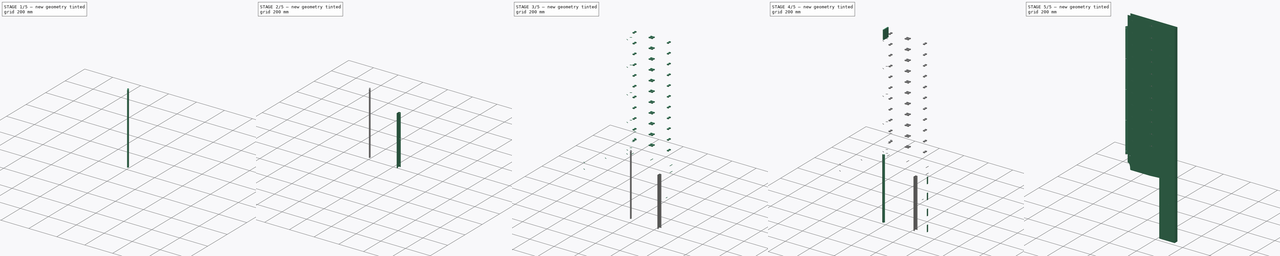
[diagram: build sequence overview — one tinted view per stage of 5, left to right]
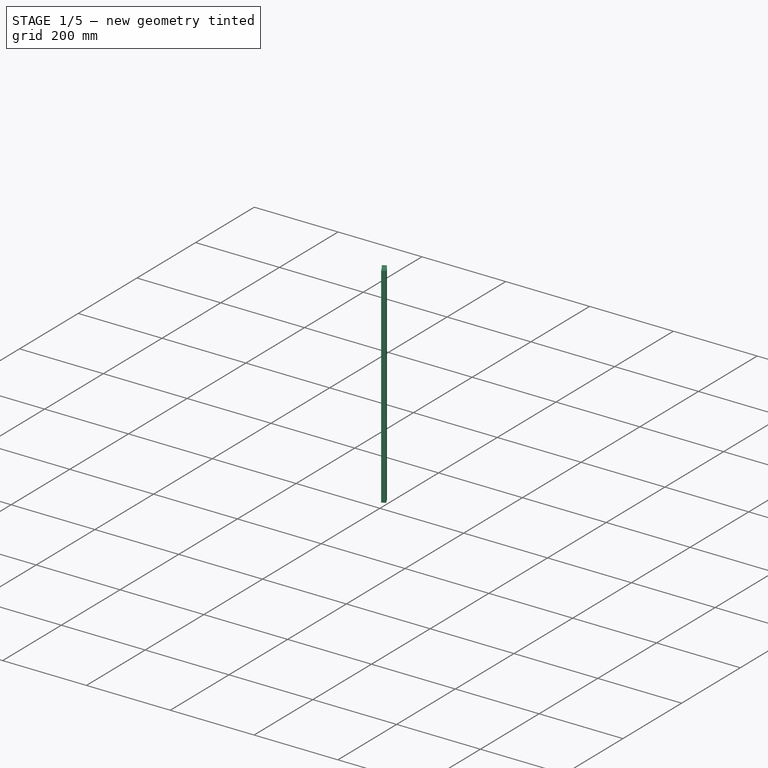
[diagram: stage 1 of 5 — iso view after this stage's code; geometry added in this stage tinted green]
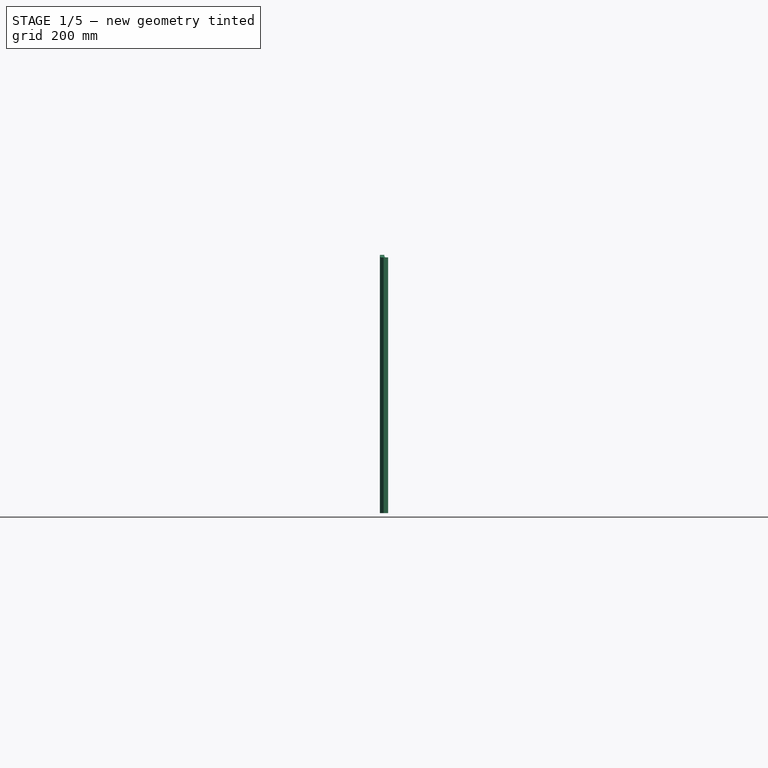
[diagram: stage 1 of 5 — front view after this stage's code; geometry added in this stage tinted green]
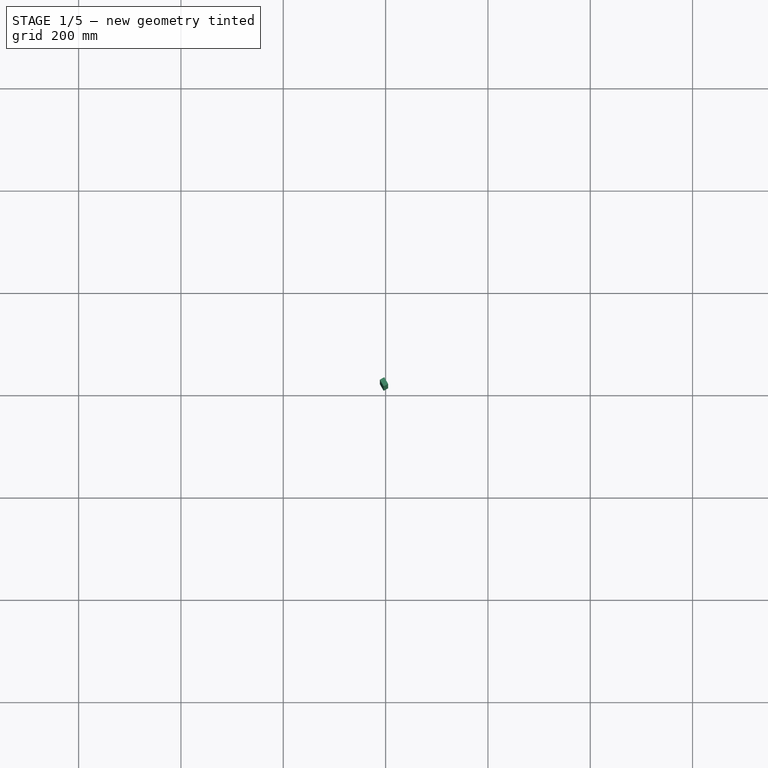
[diagram: stage 1 of 5 — top view after this stage's code; geometry added in this stage tinted green]
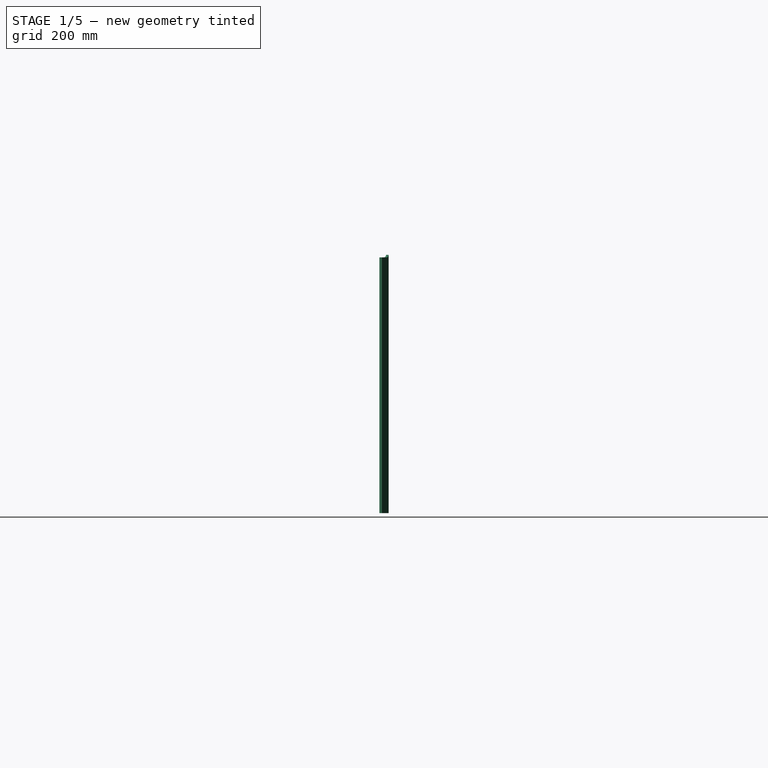
[diagram: stage 1 of 5 — right view after this stage's code; geometry added in this stage tinted green]
FCSTD DOCUMENT  (FreeCAD 1.1R38827 (Git))
Label: composit_stand3_base_part1_model
License: All rights reserved
LicenseURL: http://en.wikipedia.org/wiki/All_rights_reserved
objects: Part::FeaturePython×10, App::Link×10, PartDesign::SubShapeBinder×7, Part::Extrusion×4, PartDesign::Body×3, PartDesign::CoordinateSystem×3, Part::MultiFuse×3, PartDesign::Boolean×3, Part::Mirroring×2, PartDesign::FeaturePython×2, Sketcher::SketchObject×2, Part::Box×1, Part::Feature×1, Part::Compound×1
note: 49 computed .brp shape members not serialized (recipe doc carries the construction recipe); baked Part::Feature solids carry a one-line shape summary decoded from their .brp
EXTERNAL_REF file=composit_stand3_base_part1_main.FCStd obj=Binder
EXTERNAL_REF file=composit_stand3_base_part1_main.FCStd obj=Sketch
EXTERNAL_REF file=composit_stand3_base_part1_main.FCStd obj=Placment
EXTERNAL_REF file=composit_stand3_base_part1_main.FCStd obj=Placment002
EXTERNAL_REF file=composit_stand3_base_part1_main.FCStd obj=Sketch002
EXTERNAL_REF file=composit_stand3_base_part1_main.FCStd obj=Sketch003
EXTERNAL_REF file=composit_stand3_base_part1_main.FCStd obj=Sketch001
EXTERNAL_REF file=composit_stand3_base_part1_main.FCStd obj=Fusion
EXTERNAL_REF file=composit_stand3_base_part1_main.FCStd obj=Join002
EXTERNAL_REF file=composit_stand3_base_part1_main.FCStd obj=Sketch005
EXTERNAL_REF file=composit_stand3_base_part1_main.FCStd obj=Join
EXTERNAL_REF file=../module.FCStd obj=Sketch
EXTERNAL_REF file=composit_stand3_base_part1_main.FCStd obj=Placment008
EXTERNAL_REF file=composit_stand3_main.FCStd obj=Cylinder001
EXTERNAL_REF file=composit_stand3_base_part1_main.FCStd obj=LinearArray002
EXTERNAL_REF file=composit_stand3_base_part1_main.FCStd obj=Populate012
EXTERNAL_REF file=composit_stand3_base_part1_main.FCStd obj=Join003

FEATURE [PartDesign::SubShapeBinder] Binder
  BindCopyOnChange = 0
  BindMode = 0
  ClaimChildren = true
  Fuse = false
  MakeFace = true
  OffsetFill = false
  OffsetIntersection = false
  OffsetJoinType = 0
  OffsetOpenResult = false
  PartialLoad = false
  Relative = true
  Support = -> [<external composit_stand3_base_part1_main.FCStd>#Sketch,<external composit_stand3_base_part1_main.FCStd>#Binder]
  _Version = 2
  expr: Support = list(<<composit_stand3_base_part1_main>>#Binder._self; <<composit_stand3_base_part1_main>>#Sketch._self)
FEATURE [Part::Mirroring] Part__Mirroring  label="Compound (Mirror #1)"
  Base = (0,0,0)
  Normal = (0,1,0)
  Source = -> Binder
FEATURE [Part::FeaturePython] Connect  # WARN: FeaturePython — macro-defined, semantics opaque (R4)
  Objects = -> [Binder,Part__Mirroring]
  Tolerance = 0
FEATURE [PartDesign::SubShapeBinder] Binder001
  BindCopyOnChange = 0
  BindMode = 0
  ClaimChildren = true
  Context = -> Body [Binder001.]
  Fuse = false
  MakeFace = true
  OffsetFill = false
  OffsetIntersection = false
  OffsetJoinType = 0
  OffsetOpenResult = false
  PartialLoad = false
  Relative = false
  Support = -> [Connect]
  _Version = 2
FEATURE [PartDesign::FeaturePython] BaseBend  # WARN: FeaturePython — macro-defined, semantics opaque (R4)
  BendSide = 0
  BendSketch = -> Binder001
  MidPlane = false
  Reverse = false
  Suppressed = false
  length = 1428
  radius = 0.1
  thickness = 0.3
  expr: length = <<top_placement>>.LinkedObject.Placement.Base.z
FEATURE [Part::Feature] Body159  label="part1_material_0.30ansi002"
  Placement = pos=(0,0,0) rot=(0,0,-1;1.5708rad)
  shape: bbox 356 x 59.31 x 1428 mm, 498 faces (baked)
FEATURE [PartDesign::SubShapeBinder] Binder004
  BindCopyOnChange = 0
  BindMode = 0
  ClaimChildren = true
  Fuse = false
  MakeFace = true
  OffsetFill = false
  OffsetIntersection = false
  OffsetJoinType = 0
  OffsetOpenResult = false
  PartialLoad = false
  Relative = true
  Support = -> [<external composit_stand3_base_part1_main.FCStd>#Sketch]
  _Version = 2
  expr: Support = <<composit_stand3_base_part1_main>>#Sketch._self
FEATURE [Sketcher::SketchObject] Sketch  label="side_bottom_cut_sketch"
  ArcFitTolerance = 0
  AttachmentOffset = pos=(0,0,0) rot=(0,1,0;1.5708rad)
  AttachmentSupport = -> [Binder004]
  ExternalGeometry = -> [Binder004]
  FullyConstrained = true
  MakeInternals = false
  MapMode = 7
  Placement = pos=(4.90748,14.5,0) rot=(0.377964,0.654654,0.654654;2.41886rad)
  expr: .Constraints.height = <<composit_stand3_base_part1_main>>#<<basin_cut_sketch>>.Constraints.height + <<composit_stand3_base_part1_main>>#<<basin_cut_top_sketch>>.Constraints.sink_cut_height + 55 mm
  sketch-geometry (5):
    g0: LineSegment StartX=0 StartY=0 StartZ=0 EndX=15 EndY=0 EndZ=0
    g1: LineSegment StartX=15 StartY=0 StartZ=0 EndX=15 EndY=505 EndZ=0
    g2: LineSegment StartX=0 StartY=500 StartZ=0 EndX=0 EndY=0 EndZ=0
    g3: LineSegment StartX=10 StartY=500 StartZ=0 EndX=0 EndY=500 EndZ=0
    g4: ArcOfCircle CenterX=10 CenterY=505 CenterZ=0 NormalX=0 NormalY=0 NormalZ=1 AngleXU=0 Radius=5 StartAngle=4.71239 EndAngle=6.28319
  constraints (12):
    c: Coincident(g0,g1)
    c: Coincident(g3,g2)
    c: Coincident(g2,g0)
    c: Vertical(g1)
    c: Vertical(g2)
    c: Coincident(g0,g-1)
    c: Coincident(g0,g-3)
    c: DistanceY(g2,g2) = 500  'height'
    c: Horizontal(g3)
    c: Tangent(g4,g1) = -1.5708
    c: Tangent(g4,g3) = 1.5708
    c: Radius(g4) = 5
FEATURE [Part::Extrusion] Extrude
  Base = -> Sketch
  Dir = (0.866025,0.5,1e-16)
  DirMode = 2
  FaceMakerClass = Part::FaceMakerBullseye
  FaceMakerMode = 3
  LengthFwd = 10
  LengthRev = 0
  Reversed = true
  Solid = true
  Symmetric = false
FEATURE [Part::FeaturePython] Mirror  label="Mirror of parts_fix_holes"  # WARN: FeaturePython — macro-defined, semantics opaque (R4)
  ExposePlacement = false
  FlipX = false
  FlipY = true
  FlipZ = false
  MarkerShape = 1
  MarkerSize = 0
  NumElements = 5
  Object = -> Link008
  ObjectTraversal = 0
  Type = lattice2Mirror.LatticeMirror
  isLattice = 1
FEATURE [Part::FeaturePython] PolarArray  # WARN: FeaturePython — macro-defined, semantics opaque (R4)
  Alignment = 0
  AttacherType = Attacher::AttachEngine3D
  CellStart = A1
  Count = 2
  DistributionLaw = 0
  EndInclusive = false
  ExposePlacement = false
  FlipX = false
  FlipZ = false
  GeneratorMode = 0
  MarkerShape = 1
  MarkerSize = 10
  NumElements = 2
  OrientMode = 2
  Placement = pos=(0,0,0) rot=(0,0,1;-2.0944rad)
  Radius = 0
  Reverse = false
  SpanEnd = 240
  SpanStart = 0
  Step = 120
  Type = lattice2PolarArray2.PolarArray
  UseArcRadius = false
  UseArcRange = 0
  VSGVersion = 1
  Values = 0.0 | 120.0
  ValuesSource = 2
  isLattice = 1
FEATURE [Part::FeaturePython] Populate004  label="Populate PolarArray with sink_placement"  # WARN: FeaturePython — macro-defined, semantics opaque (R4)
  Copying = 0
  ExposePlacement = false
  MarkerShape = 1
  MarkerSize = 0
  NumElements = 2
  Object = -> Link002
  OutputCompounding = 0
  PlacementsTo = -> PolarArray
  Referencing = 0
  Type = lattice2PopulateCopies.LatticePopulateCopies
  isLattice = 1
FEATURE [Sketcher::SketchObject] Sketch001
  ArcFitTolerance = 0
  AttachmentOffset = pos=(0,0,0) rot=(-0.57735,-0.57735,-0.57735;2.0944rad)
  AttachmentSupport = -> [Binder004]
  FullyConstrained = true
  MakeInternals = false
  MapMode = 7
  Placement = pos=(4.90748,14.5,0) rot=(0,0,1;0rad)
  expr: Constraints[17] = <<BaseBend>>.thickness
  expr: Constraints[6] = <<BaseBend>>.radius
  sketch-geometry (7):
    g0: LineSegment [constr] StartX=0.057735 StartY=0 StartZ=0 EndX=0 EndY=0 EndZ=0
    g1: LineSegment [constr] StartX=0 StartY=0 StartZ=0 EndX=-0.0288675 EndY=0.05 EndZ=0
    g2: ArcOfCircle CenterX=0.057735 CenterY=0.1 CenterZ=0 NormalX=0 NormalY=0 NormalZ=1 AngleXU=0 Radius=0.1 StartAngle=3.66519 EndAngle=4.71239
    g3: LineSegment StartX=0.057735 StartY=0 StartZ=0 EndX=0.057735 EndY=-0.3 EndZ=0
    g4: LineSegment StartX=0.057735 StartY=-0.3 StartZ=0 EndX=-0.173205 EndY=-0.3 EndZ=0
    g5: LineSegment StartX=-0.173205 StartY=-0.3 StartZ=0 EndX=-0.288675 EndY=-0.1 EndZ=0
    g6: LineSegment StartX=-0.288675 StartY=-0.1 StartZ=0 EndX=-0.0288675 EndY=0.05 EndZ=0
  constraints (18):
    c: PointOnObject(g0,g-1)
    c: Coincident(g0,g-1)
    c: Coincident(g0,g1)
    c: Tangent(g2,g1) = 1.5708
    c: Tangent(g2,g0) = 1.5708
    c: Angle(g1) = 2.0944
    c: Radius(g2) = 0.1
    c: Coincident(g0,g3)
    c: Coincident(g3,g4)
    c: Coincident(g4,g5)
    c: Coincident(g5,g6)
    c: Coincident(g6,g1)
    c: Perpendicular(g2,g6)
    c: Perpendicular(g2,g3)
    c: Equal(g6,g3)
    c: Equal(g4,g5)
    c: Perpendicular(g3,g4)
    c: DistanceY(g3,g3) = 0.3
FEATURE [Part::Extrusion] Extrude003
  Base = -> Sketch001
  Dir = (0,0,1)
  DirMode = 2
  FaceMakerClass = Part::FaceMakerBullseye
  FaceMakerMode = 3
  LengthFwd = 500
  LengthRev = 0
  Solid = true
  Symmetric = false
  expr: LengthFwd = <<side_bottom_cut_sketch>>.Constraints.height
FEATURE [Part::MultiFuse] Fusion002
  Shapes = -> [Extrude,Extrude003]
FEATURE [Sketcher::SketchObject] Sketch004
  ArcFitTolerance = 0
  FullyConstrained = true
  MakeInternals = false
  Placement = pos=(8.37158,14.5,0) rot=(0.774597,-0.447214,-0.447214;1.82348rad)
  expr: .Placement.Base.x = composit_stand3_main#<<main_sketch>>.Constraints.x_face_offset
  expr: Constraints[9] = <<basin_cut_sketch>>.Constraints.height + <<basin_cut_top_sketch>>.Constraints.sink_cut_height
  sketch-geometry (4):
    g0: LineSegment StartX=0 StartY=0 StartZ=0 EndX=0 EndY=445 EndZ=0
    g1: LineSegment StartX=0 StartY=445 StartZ=0 EndX=-1 EndY=445 EndZ=0
    g2: LineSegment StartX=-1 StartY=445 StartZ=0 EndX=-1 EndY=0 EndZ=0
    g3: LineSegment StartX=-1 StartY=0 StartZ=0 EndX=0 EndY=0 EndZ=0
  constraints (11):
    c: Coincident(g0,g1)
    c: Coincident(g1,g2)
    c: Coincident(g2,g3)
    c: Coincident(g3,g0)
    c: Vertical(g0)
    c: Vertical(g2)
    c: Horizontal(g1)
    c: Horizontal(g3)
    c: Coincident(g0,g-1)
    c: DistanceY(g0,g0) = 445
    c: DistanceX(g3,g3) = 1
FEATURE [Part::Extrusion] Extrude003
  Base = -> Sketch004
  Dir = (-0.866025,-0.5,2e-16)
  DirMode = 2
  FaceMakerClass = Part::FaceMakerBullseye
  FaceMakerMode = 3
  LengthFwd = 10
  LengthRev = 0
  Solid = true
  Symmetric = false
FEATURE [App::Link] Link002  label="edge_placement"
  LinkTransform = true
  LinkedObject = -> <external composit_stand3_bottom_shield_main.FCStd>#Placment
FEATURE [App::Link] Link003  label="fix_placements"
  LinkTransform = true
  LinkedObject = -> <external composit_stand3_bottom_shield_main.FCStd>#LinearArray
FEATURE [Sketcher::SketchObject] Sketch005  label="shield_fix_hole_sketch"
  ArcFitTolerance = 0
  FullyConstrained = true
  MakeInternals = false
  sketch-geometry (5):
    g0: LineSegment StartX=-3.2 StartY=-26.4022 StartZ=0 EndX=0 EndY=-26.4022 EndZ=0
    g1: LineSegment StartX=0 StartY=-26.4022 StartZ=0 EndX=0 EndY=26.4022 EndZ=0
    g2: LineSegment StartX=0 StartY=26.4022 StartZ=0 EndX=-3.2 EndY=26.4022 EndZ=0
    g3: LineSegment StartX=-3.2 StartY=26.4022 StartZ=0 EndX=-3.2 EndY=-26.4022 EndZ=0
    g4: GeomPoint [constr] X=-1.6 Y=0 Z=0
  constraints (13):
    c: Coincident(g0,g1)
    c: Coincident(g1,g2)
    c: Coincident(g2,g3)
    c: Coincident(g3,g0)
    c: Horizontal(g0)
    c: Horizontal(g2)
    c: Vertical(g1)
    c: Vertical(g3)
    c: Symmetric(g2,g0,g4)
    c: PointOnObject(g4,g-1)
    c: PointOnObject(g1,g-2)
    c: DistanceX(g0,g1) = 3.2
    c: DistanceY(g0,g1) = 52.8044
FEATURE [Part::FeaturePython] Placment005  label="shield_placement"  # WARN: FeaturePython — macro-defined, semantics opaque (R4)
  AttacherType = Attacher::AttachEngine3D
  ExposePlacement = true
  MarkerShape = 1
  MarkerSize = 50
  NumElements = 1
  Placement = pos=(0,0,0) rot=(0,0,1;1.0472rad)
  Type = lattice2AttachablePlacement.AttachablePlacement
  isLattice = 1
FEATURE [Part::FeaturePython] Placment006  label="Custom"  # WARN: FeaturePython — macro-defined, semantics opaque (R4)
  ExposePlacement = true
  FlipZ = false
  Invert = false
  MarkerShape = 1
  MarkerSize = 50
  NumElements = 1
  Placement = pos=(0,0,0) rot=(0.774597,0.447214,0.447214;1.82348rad)
  PlacementChoice = 0
  Type = lattice2Placement.LatticePlacement
  isLattice = 1
FEATURE [Part::FeaturePython] Populate008  label="Populate edge_placement with fix_placements"  # WARN: FeaturePython — macro-defined, semantics opaque (R4)
  Copying = 0
  ExposePlacement = false
  MarkerShape = 1
  MarkerSize = 0
  NumElements = 4
  Object = -> Link003
  OutputCompounding = 0
  PlacementsTo = -> Link002
  Referencing = 0
  Type = lattice2PopulateCopies.LatticePopulateCopies
  isLattice = 1
FEATURE [Part::FeaturePython] Populate009  label="Populate Populate edge_placement with fix_placements with Custom"  # WARN: FeaturePython — macro-defined, semantics opaque (R4)
  Copying = 0
  ExposePlacement = false
  MarkerShape = 1
  MarkerSize = 0
  NumElements = 4
  Object = -> Placment006
  OutputCompounding = 0
  PlacementsTo = -> Populate008
  Referencing = 0
  Type = lattice2PopulateCopies.LatticePopulateCopies
  isLattice = 1
FEATURE [Part::FeaturePython] Mirror002  label="Mirror002 of Populate Populate edge_placement with fix_placements with Custom"  # WARN: FeaturePython — macro-defined, semantics opaque (R4)
  ExposePlacement = false
  FlipX = false
  FlipY = true
  FlipZ = false
  MarkerShape = 1
  MarkerSize = 0
  NumElements = 4
  Object = -> Populate009
  ObjectTraversal = 0
  Type = lattice2Mirror.LatticeMirror
  isLattice = 1
FEATURE [Part::FeaturePython] Populate011  label="Populate shield_placement with Mirror002 of Populate Populate edge_placement with fix_placements with Custom"  # WARN: FeaturePython — macro-defined, semantics opaque (R4)
  Copying = 0
  ExposePlacement = false
  MarkerShape = 1
  MarkerSize = 0
  NumElements = 4
  Object = -> Mirror002
  OutputCompounding = 0
  PlacementsTo = -> Placment005
  Referencing = 0
  Type = lattice2PopulateCopies.LatticePopulateCopies
  isLattice = 1
FEATURE [Part::FeaturePython] Join002  label="shield_fix_holes"  # WARN: FeaturePython — macro-defined, semantics opaque (R4)
  ExposePlacement = false
  Interleave = false
  Links = -> [Populate011]
  MarkerShape = 1
  MarkerSize = 0
  NumElements = 4
  Type = lattice2JoinArrays.JoinArrays
  isLattice = 1
FEATURE [Part::FeaturePython] LinearArray002  label="leg_fix_placements"  # WARN: FeaturePython — macro-defined, semantics opaque (R4)
  Alignment = 0
  CellStart = A1
  Count = 3
  Dir = (1,0,0)
  DirIsDriven = true
  DistributionLaw = 0
  DrivenProperty = 1
  EndInclusive = true
  ExposePlacement = false
  GeneratorMode = 0
  MarkerShape = 1
  MarkerSize = 0
  NumElements = 3
  OrientMode = 1
  Placement = pos=(245,14.5,0) rot=(0.57735,0.57735,0.57735;4.18879rad)
  Point = (0,0,0)
  PointIsDriven = true
  Reverse = false
  SpanEnd = 390
  SpanStart = 20
  Step = 185
  Type = lattice2LinearArray.LinearArray
  VSGVersion = 1
  Values = 20.0 | 205.0 | 390.0
  ValuesSource = 2
  isLattice = 1
  expr: .Placement.Base.y = <<composit_stand3_main>>#<<main_sketch>>.Constraints.end_width / 2
FEATURE [Part::FeaturePython] Placment007  # WARN: FeaturePython — macro-defined, semantics opaque (R4)
  AttacherType = Attacher::AttachEngine3D
  AttachmentOffset = pos=(3,0,4.42) rot=(0.57735,0.57735,0.57735;2.0944rad)
  AttachmentSupport = -> [Sketch]
  ExposePlacement = true
  MapMode = 7
  MarkerShape = 1
  MarkerSize = 20
  NumElements = 1
  Placement = pos=(2.21555,25.1625,0) rot=(0.694747,0.186157,0.694747;3.50969rad)
  Type = lattice2AttachablePlacement.AttachablePlacement
  isLattice = 1
FEATURE [Part::FeaturePython] Placment008  label="magnet_fix_placement"  # WARN: FeaturePython — macro-defined, semantics opaque (R4)
  AttacherType = Attacher::AttachEngine3D
  ExposePlacement = true
  MarkerShape = 1
  MarkerSize = 50
  NumElements = 1
  Placement = pos=(308.872,-14.5,248) rot=(1,0,0;1.5708rad)
  Type = lattice2AttachablePlacement.AttachablePlacement
  isLattice = 1
  expr: .Placement.Base.x = 300.5 mm + <<composit_stand3_main>>#<<main_sketch>>.Constraints.x_face_offset
  expr: .Placement.Base.y = -<<composit_stand3_main>>#<<main_sketch>>.Constraints.end_width / 2
FEATURE [Part::Feature] Body159  label="part1_material_0.30ansi002"
  Placement = pos=(0,0,0) rot=(0,0,-1;1.5708rad)
  shape: bbox 356 x 59.31 x 1428 mm, 498 faces (baked)
FEATURE [Part::FeaturePython] LinearArray003  # WARN: FeaturePython — macro-defined, semantics opaque (R4)
  Alignment = 0
  CellStart = A1
  Count = 5
  Dir = (1,0,0)
  DirIsDriven = true
  DistributionLaw = 0
  DrivenProperty = 1
  EndInclusive = true
  ExposePlacement = false
  GeneratorMode = 0
  MarkerShape = 1
  MarkerSize = 0
  NumElements = 5
  OrientMode = 1
  Point = (0,0,0)
  PointIsDriven = true
  Reverse = false
  SpanEnd = 1343
  SpanStart = 523
  Step = 205
  Type = lattice2LinearArray.LinearArray
  VSGVersion = 1
  Values = 523.0 | 728.0 | 933.0 | 1138.0 | 1343.0
  ValuesSource = 2
  isLattice = 1
FEATURE [Part::FeaturePython] Populate012  label="parts_fix_holes"  # WARN: FeaturePython — macro-defined, semantics opaque (R4)
  Copying = 0
  ExposePlacement = false
  MarkerShape = 1
  MarkerSize = 0
  NumElements = 5
  Object = -> LinearArray003
  OutputCompounding = 0
  PlacementsTo = -> Placment007
  Referencing = 0
  Type = lattice2PopulateCopies.LatticePopulateCopies
  isLattice = 1
FEATURE [Part::FeaturePython] Placment009  # WARN: FeaturePython — macro-defined, semantics opaque (R4)
  AttacherType = Attacher::AttachEngine3D
  ExposePlacement = true
  MarkerShape = 1
  MarkerSize = 20
  NumElements = 1
  Placement = pos=(181.372,0,0) rot=(0,0,1;0rad)
  Type = lattice2AttachablePlacement.AttachablePlacement
  isLattice = 1
  expr: .Placement.Base.x = <<modules_placement_x>>.LinkedObject.Placement.Base.x * 1 mm + (<<modules_placement_x>>.LinkedObject.SpanStart + <<modules_placement_x>>.LinkedObject.SpanEnd) / 2
FEATURE [Part::FeaturePython] PolarArray  # WARN: FeaturePython — macro-defined, semantics opaque (R4)
  Alignment = 0
  AttacherType = Attacher::AttachEngine3D
  CellStart = A1
  Count = 2
  DistributionLaw = 0
  EndInclusive = false
  ExposePlacement = false
  FlipX = false
  FlipZ = false
  GeneratorMode = 0
  MarkerShape = 1
  MarkerSize = 50
  NumElements = 2
  OrientMode = 2
  Radius = 0
  Reverse = false
  SpanEnd = 360
  SpanStart = 0
  Step = 180
  Type = lattice2PolarArray2.PolarArray
  UseArcRadius = false
  UseArcRange = 0
  VSGVersion = 1
  Values = 0.0 | 180.0
  ValuesSource = 2
  isLattice = 1
FEATURE [Part::FeaturePython] Populate013  label="Populate PolarArray with Populate Populate Placment with Populate modules_placement_x with LinearArray with Placment001"  # WARN: FeaturePython — macro-defined, semantics opaque (R4)
  Copying = 0
  ExposePlacement = false
  MarkerShape = 1
  MarkerSize = 0
  NumElements = 44
  Object = -> Populate002
  OutputCompounding = 0
  PlacementsFrom = -> Placment009
  PlacementsTo = -> PolarArray
  Referencing = 3
  Type = lattice2PopulateCopies.LatticePopulateCopies
  isLattice = 1
FEATURE [Part::FeaturePython] Populate014  label="Populate Placment009 with Populate PolarArray with Populate Populate Placment with Populate modules_placement_x with LinearArray with Placment001"  # WARN: FeaturePython — macro-defined, semantics opaque (R4)
  Copying = 0
  ExposePlacement = false
  MarkerShape = 1
  MarkerSize = 0
  NumElements = 44
  Object = -> Populate013
  OutputCompounding = 0
  PlacementsTo = -> Placment009
  Referencing = 0
  Type = lattice2PopulateCopies.LatticePopulateCopies
  isLattice = 1
FEATURE [Part::FeaturePython] Join  label="modules_placements"  # WARN: FeaturePython — macro-defined, semantics opaque (R4)
  ExposePlacement = false
  Interleave = false
  Links = -> [Populate014]
  MarkerShape = 1
  MarkerSize = 0
  NumElements = 44
  Type = lattice2JoinArrays.JoinArrays
  isLattice = 1
FEATURE [App::Link] Link004  label="side_holes_half_sketch"
  LinkTransform = true
  LinkedObject = -> <external composit_stand3_sink_main.FCStd>#Sketch005
FEATURE [PartDesign::SubShapeBinder] Binder001
  BindCopyOnChange = 0
  BindMode = 0
  ClaimChildren = false
  Fuse = false
  MakeFace = true
  OffsetFill = false
  OffsetIntersection = false
  OffsetJoinType = 0
  OffsetOpenResult = false
  PartialLoad = false
  Relative = true
  Support = -> [Link004]
  _Version = 2
FEATURE [Sketcher::SketchObject] Sketch006
  ArcFitTolerance = 1e-06
  ExternalGeometry = -> [Binder001]
  FullyConstrained = true
  MakeInternals = false
  Placement = pos=(0,0,0) rot=(0.774597,0.447214,0.447214;1.82348rad)
  sketch-geometry (6):
    g0: Circle CenterX=13.8756 CenterY=84 CenterZ=0 NormalX=0 NormalY=0 NormalZ=1 AngleXU=0 Radius=1.7
    g1: Circle CenterX=173.002 CenterY=84 CenterZ=0 NormalX=0 NormalY=0 NormalZ=1 AngleXU=0 Radius=1.7
    g2: Circle CenterX=332.128 CenterY=84 CenterZ=0 NormalX=0 NormalY=0 NormalZ=1 AngleXU=0 Radius=1.7
    g3: Circle CenterX=332.128 CenterY=34 CenterZ=0 NormalX=0 NormalY=0 NormalZ=1 AngleXU=0 Radius=1.7
    g4: LineSegment [constr] StartX=13.8756 StartY=84 StartZ=0 EndX=14.3756 EndY=84 EndZ=0
    g5: LineSegment [constr] StartX=331.628 StartY=84 StartZ=0 EndX=332.128 EndY=84 EndZ=0
  constraints (15):
    c: Symmetric(g0,g2,g1)
    c: Horizontal(g0,g2)
    c: Coincident(g4,g0)
    c: Coincident(g4,g-3)
    c: Coincident(g5,g-4)
    c: Coincident(g5,g2)
    c: Equal(g4,g5)
    c: DistanceX(g4,g4) = 0.5
    c: Equal(g3,g2)
    c: Equal(g3,g1)
    c: Equal(g3,g0)
    c: Diameter(g3) = 3.4
    c: Horizontal(g4)
    c: Horizontal(g3,g-5)
    c: Vertical(g3,g2)
FEATURE [Part::FeaturePython] Downgrade  label="Edges of Sketch006"  # WARN: FeaturePython — macro-defined, semantics opaque (R4)
  Base = -> Sketch006
  Mode = 8
FEATURE [Part::FeaturePython] ArrayFromShape  label="Array from Edges of Sketch006"  # WARN: FeaturePython — macro-defined, semantics opaque (R4)
  CompoundTraversal = 1
  ExposePlacement = false
  MarkerShape = 1
  MarkerSize = 20
  NumElements = 4
  OrientElementIndex = 0
  OrientMode = 2
  ShapeLink = -> Downgrade
  TranslateElementIndex = 0
  TranslateMode = 3
  Type = lattice2ArrayFromShape.LatticeArrayFromShape
  isLattice = 1
FEATURE [Part::FeaturePython] Mirror  label="Mirror of Array from Edges of Sketch006"  # WARN: FeaturePython — macro-defined, semantics opaque (R4)
  ExposePlacement = false
  FlipX = false
  FlipY = true
  FlipZ = false
  MarkerShape = 1
  MarkerSize = 0
  NumElements = 4
  Object = -> ArrayFromShape
  ObjectTraversal = 0
  Type = lattice2Mirror.LatticeMirror
  isLattice = 1
FEATURE [Part::FeaturePython] Join003  label="sink_holes"  # WARN: FeaturePython — macro-defined, semantics opaque (R4)
  ExposePlacement = false
  Interleave = false
  Links = -> [ArrayFromShape,Mirror]
  MarkerShape = 1
  MarkerSize = 0
  NumElements = 8
  Type = lattice2JoinArrays.JoinArrays
  isLattice = 1
---- part composit_stand3_main.FCStd = doc fcstd_90b2f18ea94f ----
FCSTD DOCUMENT  (FreeCAD 1.1R38827 (Git))
Label: composit_stand3_main
License: All rights reserved
LicenseURL: http://en.wikipedia.org/wiki/All_rights_reserved
objects: Part::Cylinder×2, Sketcher::SketchObject×1, Part::FeaturePython×1
note: 5 computed .brp shape members not serialized (recipe doc carries the construction recipe); baked Part::Feature solids carry a one-line shape summary decoded from their .brp

FEATURE [Sketcher::SketchObject] Sketch  label="main_sketch"
  ArcFitTolerance = 0
  FullyConstrained = true
  MakeInternals = false
  sketch-geometry (4):
    g0: LineSegment [constr] StartX=0 StartY=0 StartZ=0 EndX=8.37158 EndY=14.5 EndZ=0
    g1: LineSegment StartX=8.37158 StartY=14.5 StartZ=0 EndX=351.872 EndY=14.5 EndZ=0
    g2: LineSegment StartX=351.872 StartY=14.5 StartZ=0 EndX=351.872 EndY=0 EndZ=0
    g3: GeomPoint [constr] X=351.872 Y=-14.5 Z=0
  constraints (13):
    c: Coincident(g-1,g0)
    c: Horizontal(g1)
    c: Coincident(g1,g2)
    c: PointOnObject(g2,g-1)
    c: Vertical(g2)
    c: Angle(g0) = 1.0472
    c: DistanceX(g0,g1) = 343.5  'face_width'
    c: DistanceY(g3,g1) = 29  'end_width'
    c: Symmetric(g3,g1,g2)
    c: DistanceX(g0) = 8.37158  'x_face_offset'
    c: Coincident(g1,g0)
    c: Distance(g0) = 16.7432  'corner_distance'
    c: DistanceY(g0,g0) = 14.5
FEATURE [Part::FeaturePython] LinearArray  label="modules_placement_x"  # WARN: FeaturePython — macro-defined, semantics opaque (R4)
  Alignment = 0
  CellStart = A1
  Count = 2
  Dir = (1,0,0)
  DirIsDriven = true
  DistributionLaw = 0
  DrivenProperty = 1
  EndInclusive = true
  ExposePlacement = false
  GeneratorMode = 0
  MarkerShape = 1
  MarkerSize = 0
  NumElements = 2
  OrientMode = 1
  Placement = pos=(8.37158,14.5,0) rot=(0,0,1;0rad)
  Point = (0,0,0)
  PointIsDriven = true
  Reverse = false
  SpanEnd = 248
  SpanStart = 98
  Step = 150
  Type = lattice2LinearArray.LinearArray
  VSGVersion = 1
  Values = 98.0 | 248.0
  ValuesSource = 2
  isLattice = 1
  expr: .Placement.Base.x = <<main_sketch>>.Constraints.end_width / 2 / tan(60)
  expr: .Placement.Base.y = <<main_sketch>>.Constraints.end_width / 2
FEATURE [Part::Cylinder] Cylinder  label="hole_3.4mm"
  Angle = 360
  AttacherType = Attacher::AttachEngine3D
  FirstAngle = 0
  Height = 15
  Radius = 1.7
  SecondAngle = 0
FEATURE [Part::Cylinder] Cylinder001  label="hole_3.4mm_rev"
  Angle = 360
  AttacherType = Attacher::AttachEngine3D
  FirstAngle = 0
  Height = 15
  Placement = pos=(0,0,0) rot=(1,0,0;3.14159rad)
  Radius = 1.7
  SecondAngle = 0
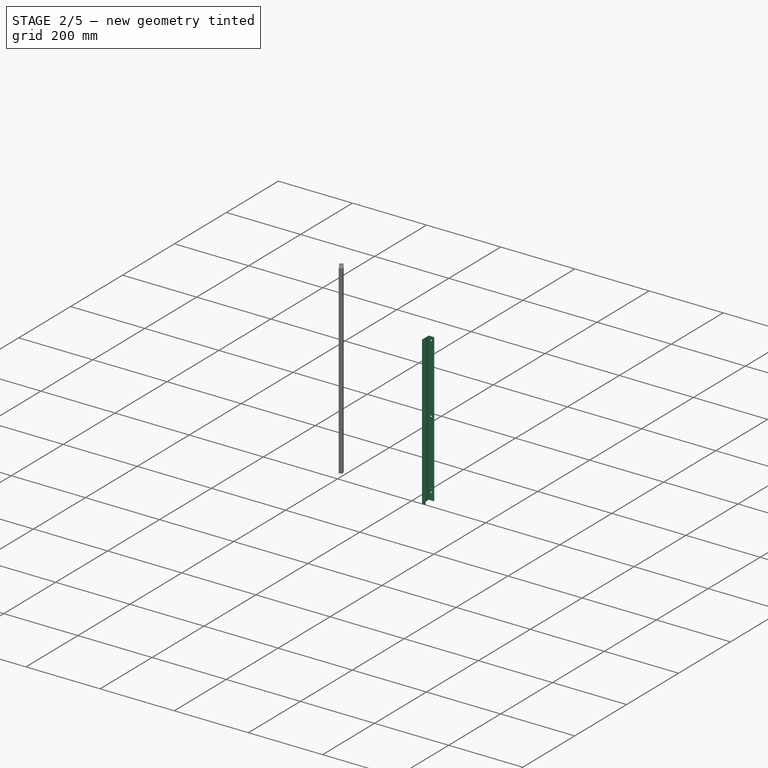
[diagram: stage 2 of 5 — iso view after this stage's code; geometry added in this stage tinted green]
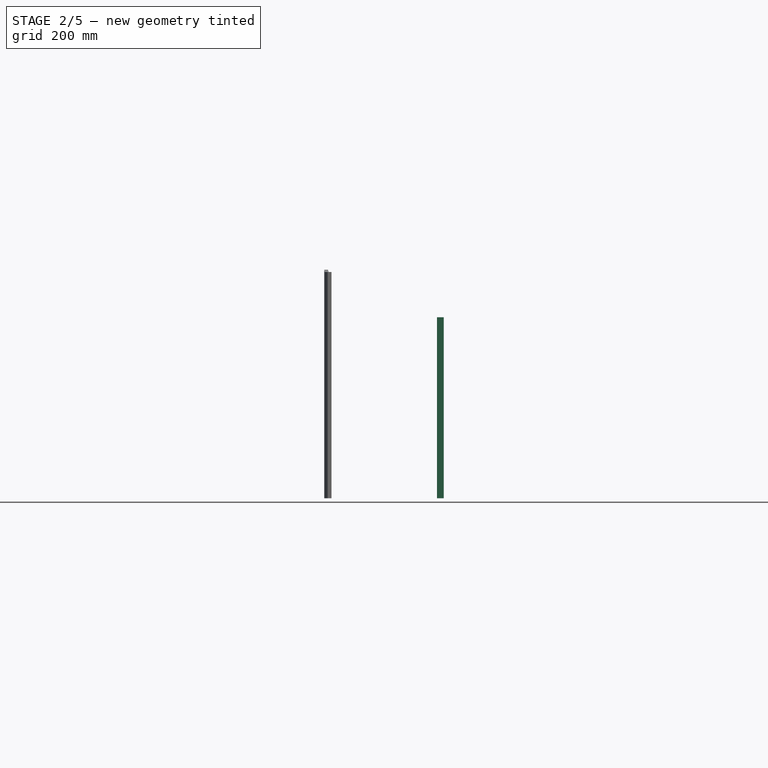
[diagram: stage 2 of 5 — front view after this stage's code; geometry added in this stage tinted green]
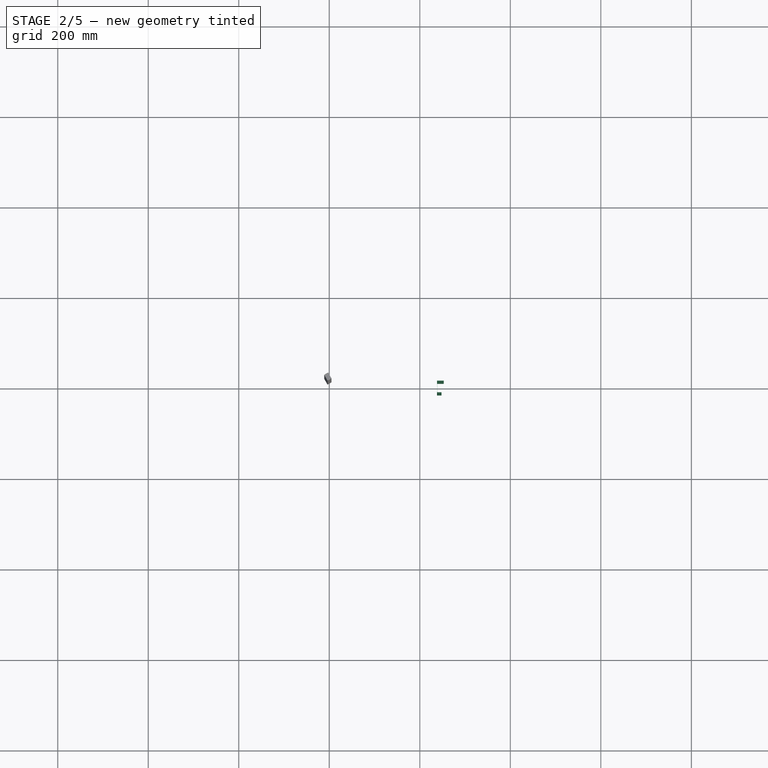
[diagram: stage 2 of 5 — top view after this stage's code; geometry added in this stage tinted green]
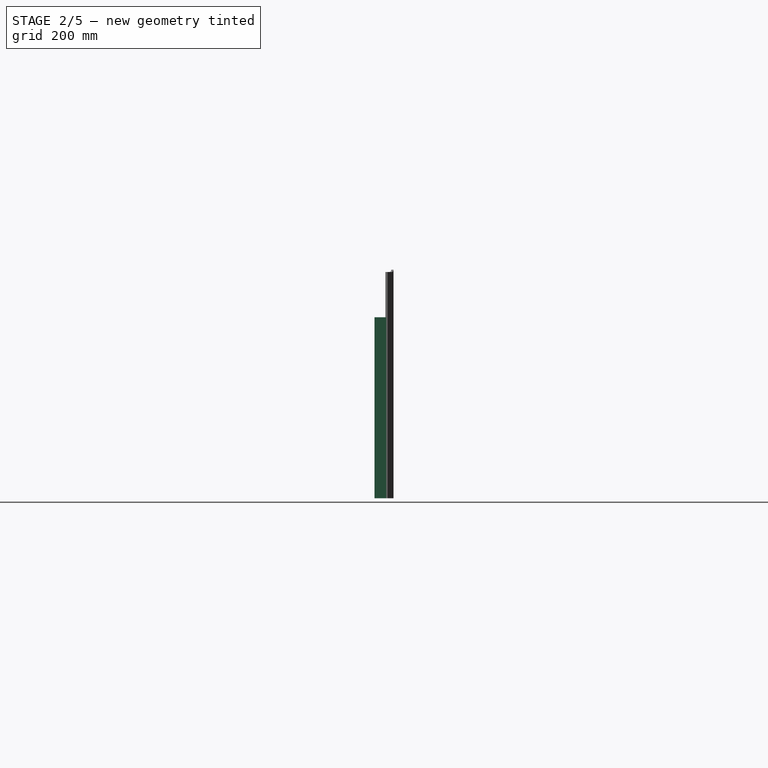
[diagram: stage 2 of 5 — right view after this stage's code; geometry added in this stage tinted green]
FEATURE [PartDesign::SubShapeBinder] Binder002
  BindCopyOnChange = 0
  BindMode = 0
  ClaimChildren = true
  Fuse = false
  MakeFace = true
  OffsetFill = false
  OffsetIntersection = false
  OffsetJoinType = 0
  OffsetOpenResult = false
  PartialLoad = false
  Placement = pos=(238.046,0,0) rot=(0,0,1;0rad)
  Relative = false
  Support = -> [<external composit_stand3_base_part1_main.FCStd>#Sketch002]
  _Version = 2
  expr: Placement = Support[0][0].Placement
FEATURE [PartDesign::SubShapeBinder] Binder003
  BindCopyOnChange = 0
  BindMode = 0
  ClaimChildren = true
  Context = -> Body002 [Binder003.]
  Fuse = false
  MakeFace = true
  OffsetFill = false
  OffsetIntersection = false
  OffsetJoinType = 0
  OffsetOpenResult = false
  PartialLoad = false
  Placement = pos=(238.046,0,0) rot=(0,0,1;0rad)
  Relative = false
  Support = -> [Binder002]
  _Version = 2
  expr: Placement = Support[0][0].Placement
FEATURE [PartDesign::FeaturePython] BaseBend001  # WARN: FeaturePython — macro-defined, semantics opaque (R4)
  BendSide = 0
  BendSketch = -> Binder003
  MidPlane = false
  Reverse = false
  Suppressed = false
  length = 400
  radius = 0.1
  thickness = 0.3
  expr: length = composit_stand3_base_part1_main#<<basin_cut_sketch>>.Constraints.height
  expr: radius = <<BaseBend>>.radius
  expr: thickness = <<BaseBend>>.thickness
FEATURE [App::Link] Link003  label="basin_cut"
  LinkedObject = -> <external composit_stand3_base_part1_main.FCStd>#Fusion
FEATURE [App::Link] Link004  label="shield_fix_holes"
  LinkedObject = -> <external composit_stand3_base_part1_main.FCStd>#Join002
FEATURE [PartDesign::SubShapeBinder] Binder005
  BindCopyOnChange = 0
  BindMode = 0
  ClaimChildren = false
  Fuse = false
  MakeFace = true
  OffsetFill = false
  OffsetIntersection = false
  OffsetJoinType = 0
  OffsetOpenResult = false
  PartialLoad = false
  Relative = true
  Support = -> [<external composit_stand3_base_part1_main.FCStd>#Sketch005]
  _Version = 2
FEATURE [Part::Extrusion] Extrude001
  Base = -> Binder005
  Dir = (0,0,1)
  DirMode = 2
  FaceMakerClass = Part::FaceMakerBullseye
  FaceMakerMode = 3
  LengthFwd = 0
  LengthRev = 10
  Solid = false
  Symmetric = false
FEATURE [Part::FeaturePython] Populate  label="Populate Mirror001 of Populate Populate Populate shield_placement with edge_placement with fix_placements with Custom with Extrude001"  # WARN: FeaturePython — macro-defined, semantics opaque (R4)
  Copying = 0
  ExposePlacement = false
  MarkerShape = 1
  MarkerSize = 0
  NumElements = 0
  Object = -> Extrude001
  OutputCompounding = 1
  PlacementsTo = -> Link004
  Referencing = 0
  Type = lattice2PopulateCopies.LatticePopulateCopies
  isLattice = 0
FEATURE [App::Link] Link005  label="modules_placements"
  LinkedObject = -> <external composit_stand3_base_part1_main.FCStd>#Join
FEATURE [PartDesign::SubShapeBinder] Binder006  label="modules_holes_import"
  BindCopyOnChange = 0
  BindMode = 0
  ClaimChildren = false
  Fuse = false
  MakeFace = true
  OffsetFill = false
  OffsetIntersection = false
  OffsetJoinType = 0
  OffsetOpenResult = false
  PartialLoad = false
  Relative = true
  Support = -> [<external ../module.FCStd>#Sketch]
  _Version = 2
FEATURE [Part::Extrusion] Extrude002  label="modules_holes_extrude"
  Base = -> Binder006
  Dir = (0,0,1)
  DirMode = 2
  FaceMakerClass = Part::FaceMakerBullseye
  FaceMakerMode = 3
  LengthFwd = 0
  LengthRev = 10
  Solid = false
  Symmetric = false
FEATURE [Part::FeaturePython] Populate001  label="Populate modules_placements with modules_holes_extrude"  # WARN: FeaturePython — macro-defined, semantics opaque (R4)
  Copying = 0
  ExposePlacement = false
  MarkerShape = 1
  MarkerSize = 0
  NumElements = 0
  Object = -> Extrude002
  OutputCompounding = 1
  PlacementsTo = -> Link005
  Referencing = 0
  Type = lattice2PopulateCopies.LatticePopulateCopies
  isLattice = 0
FEATURE [App::Link] Link  label="magnet_fix_placement"
  LinkClaimChild = true
  LinkTransform = true
  LinkedObject = -> <external composit_stand3_base_part1_main.FCStd>#Placment008
FEATURE [App::Link] Link006  label="hole_3.4mm_rev"
  LinkTransform = true
  LinkedObject = -> <external composit_stand3_main.FCStd>#Cylinder001
FEATURE [App::Link] Link007  label="leg_fix_placements"
  LinkTransform = true
  LinkedObject = -> <external composit_stand3_base_part1_main.FCStd>#LinearArray002
FEATURE [App::Link] Link008  label="parts_fix_holes"
  LinkTransform = true
  LinkedObject = -> <external composit_stand3_base_part1_main.FCStd>#Populate012
FEATURE [Part::FeaturePython] Populate003  label="Populate leg_fix_placements with hole_3.4mm_rev"  # WARN: FeaturePython — macro-defined, semantics opaque (R4)
  Copying = 0
  ExposePlacement = false
  MarkerShape = 1
  MarkerSize = 0
  NumElements = 0
  Object = -> Link006
  OutputCompounding = 1
  PlacementsTo = -> Link007
  Referencing = 0
  Type = lattice2PopulateCopies.LatticePopulateCopies
  isLattice = 0
FEATURE [Part::MultiFuse] Fusion001
  Shapes = -> [Populate003]
FEATURE [PartDesign::Boolean] Boolean002
  BaseFeature = -> BaseBend001
  Group = -> [Fusion001]
  Suppressed = false
  Type = 1
  UsePlacement = true
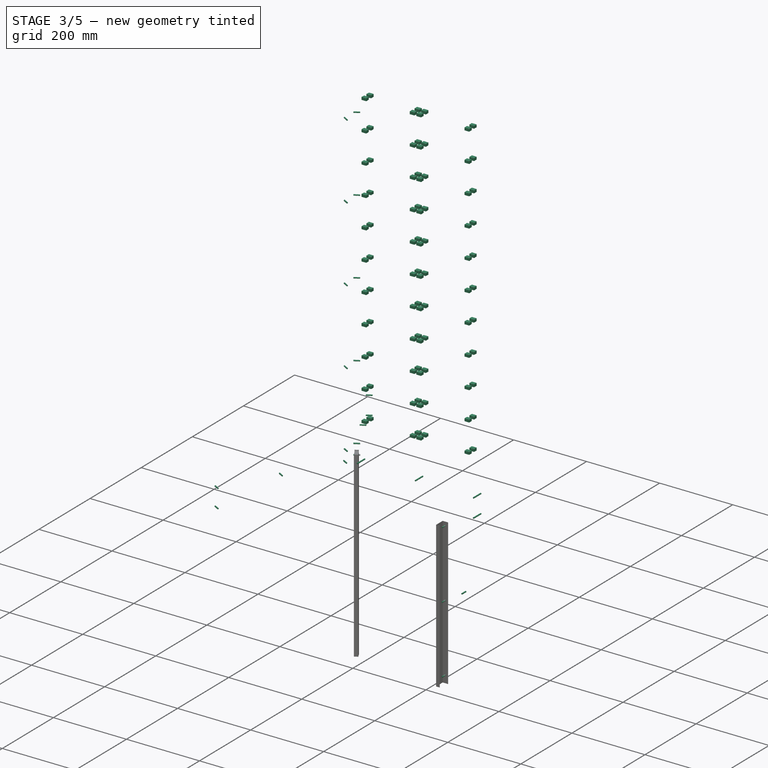
[diagram: stage 3 of 5 — iso view after this stage's code; geometry added in this stage tinted green]
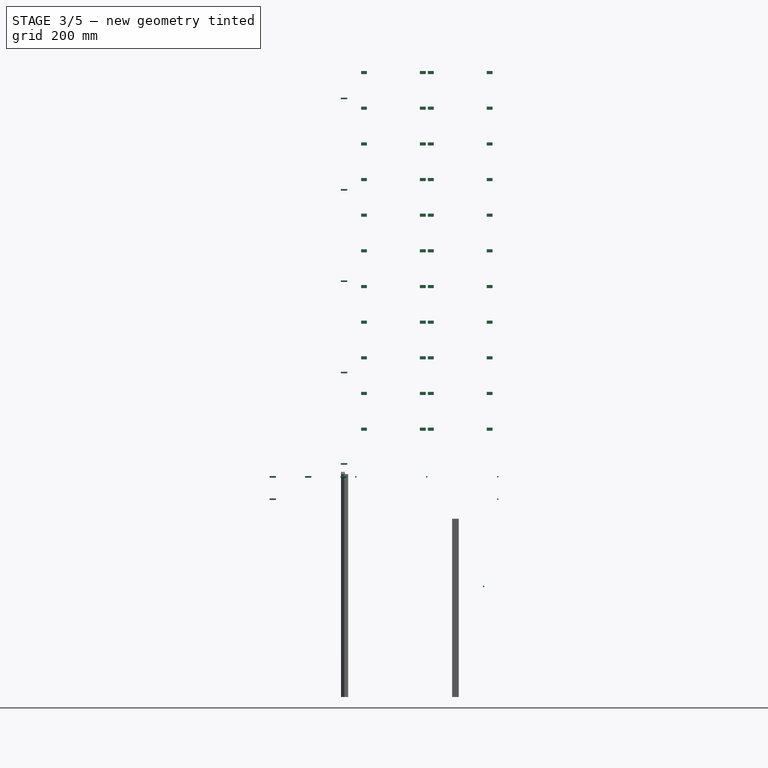
[diagram: stage 3 of 5 — front view after this stage's code; geometry added in this stage tinted green]
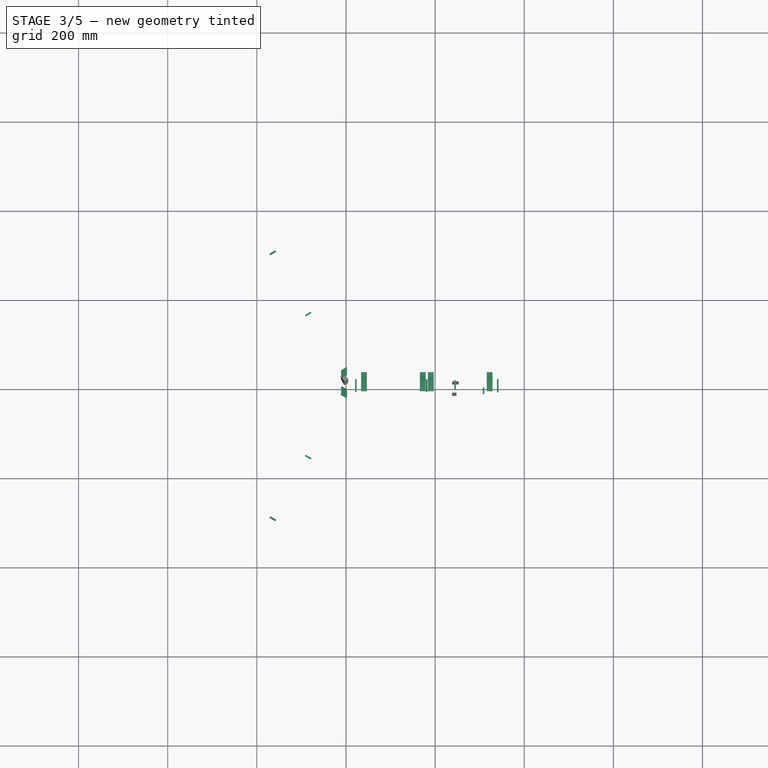
[diagram: stage 3 of 5 — top view after this stage's code; geometry added in this stage tinted green]
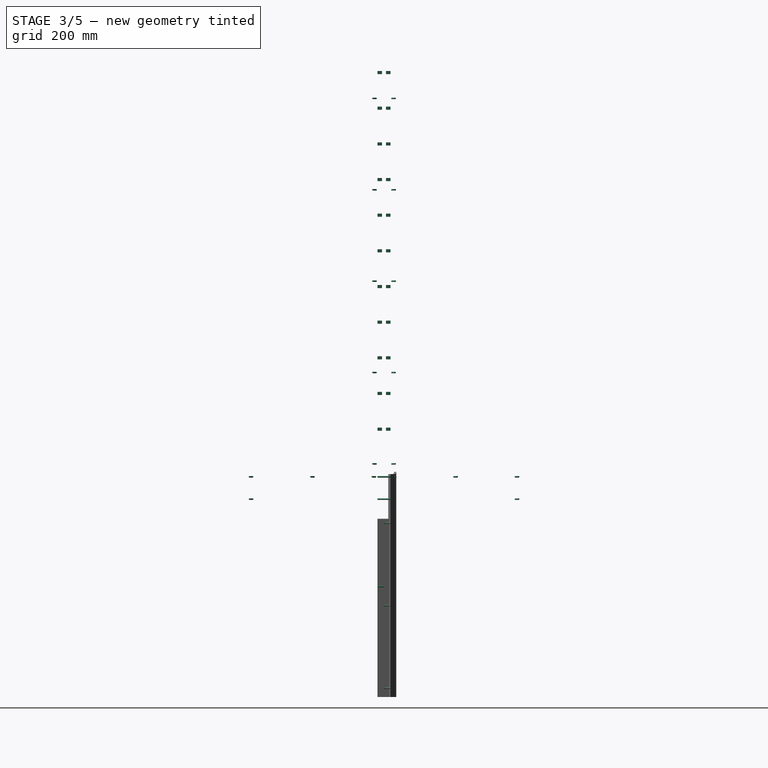
[diagram: stage 3 of 5 — right view after this stage's code; geometry added in this stage tinted green]
FEATURE [Part::FeaturePython] Populate001  label="Populate Placment with Populate modules_placement_x with LinearArray"  # WARN: FeaturePython — macro-defined, semantics opaque (R4)
  Copying = 0
  ExposePlacement = false
  MarkerShape = 1
  MarkerSize = 0
  NumElements = 22
  Object = -> Populate
  OutputCompounding = 0
  PlacementsTo = -> Placment
  Referencing = 0
  Type = lattice2PopulateCopies.LatticePopulateCopies
  isLattice = 1
FEATURE [Part::FeaturePython] Placment001  # WARN: FeaturePython — macro-defined, semantics opaque (R4)
  AttacherType = Attacher::AttachEngine3D
  ExposePlacement = true
  MarkerShape = 1
  MarkerSize = 50
  NumElements = 1
  Placement = pos=(0,0,0) rot=(0,0.707107,0.707107;3.14159rad)
  Type = lattice2AttachablePlacement.AttachablePlacement
  isLattice = 1
FEATURE [Part::FeaturePython] Populate002  label="Populate Populate Placment with Populate modules_placement_x with LinearArray with Placment001"  # WARN: FeaturePython — macro-defined, semantics opaque (R4)
  Copying = 0
  ExposePlacement = false
  MarkerShape = 1
  MarkerSize = 0
  NumElements = 22
  Object = -> Placment001
  OutputCompounding = 0
  PlacementsTo = -> Populate001
  Referencing = 0
  Type = lattice2PopulateCopies.LatticePopulateCopies
  isLattice = 1
FEATURE [Part::Extrusion] Extrude002
  Base = -> Sketch001
  Dir = (0,-1,2e-16)
  DirMode = 2
  FaceMakerClass = Part::FaceMakerBullseye
  FaceMakerMode = 3
  LengthFwd = 29
  LengthRev = 0
  Solid = true
  Symmetric = true
  expr: LengthFwd = <<Extrude001>>.LengthFwd
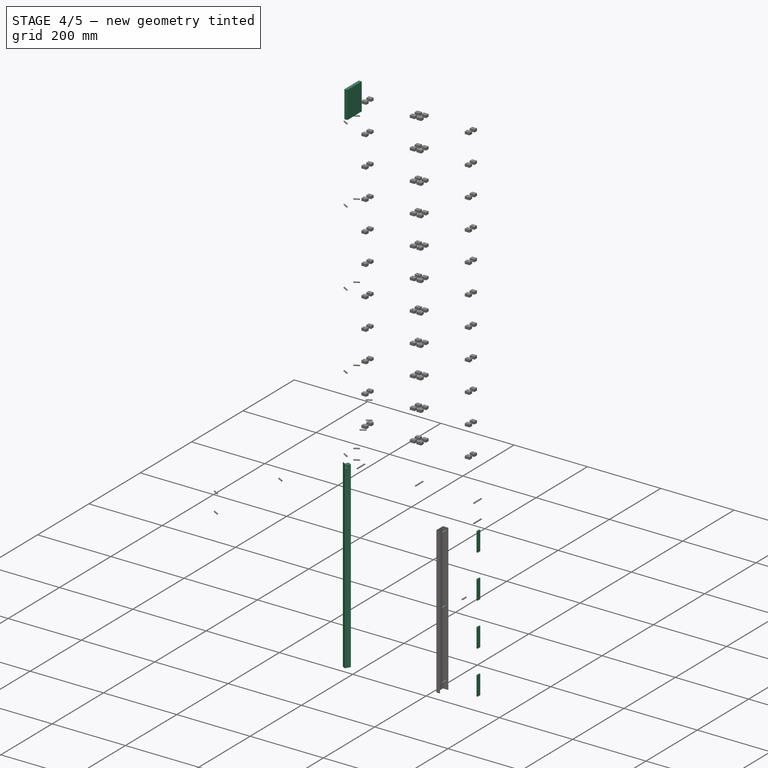
[diagram: stage 4 of 5 — iso view after this stage's code; geometry added in this stage tinted green]
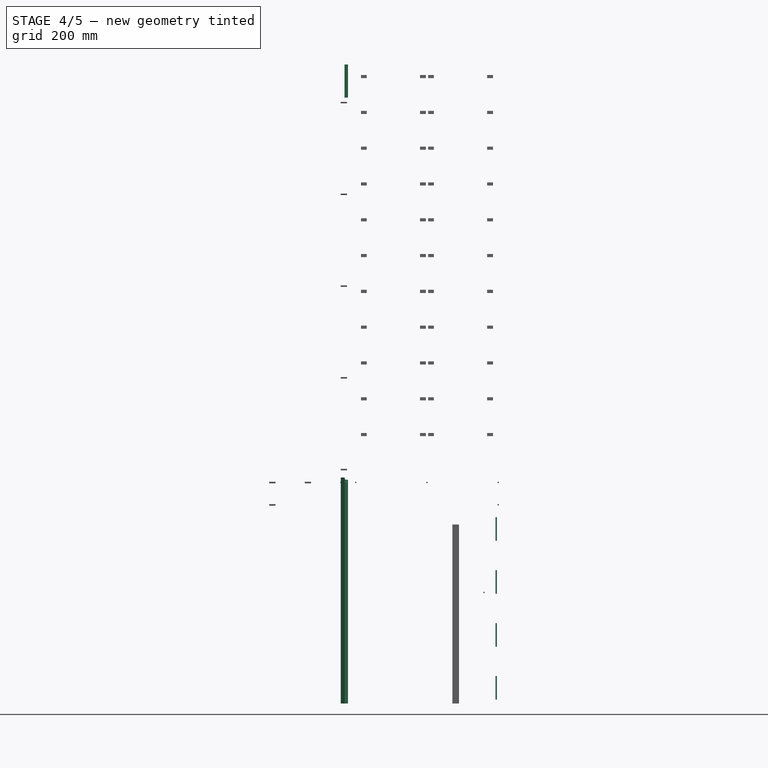
[diagram: stage 4 of 5 — front view after this stage's code; geometry added in this stage tinted green]
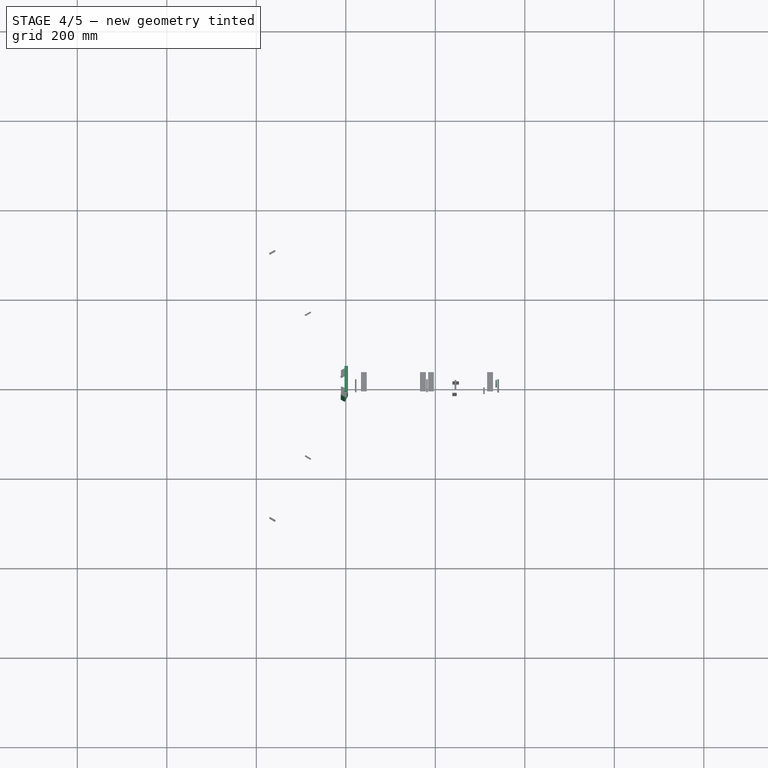
[diagram: stage 4 of 5 — top view after this stage's code; geometry added in this stage tinted green]
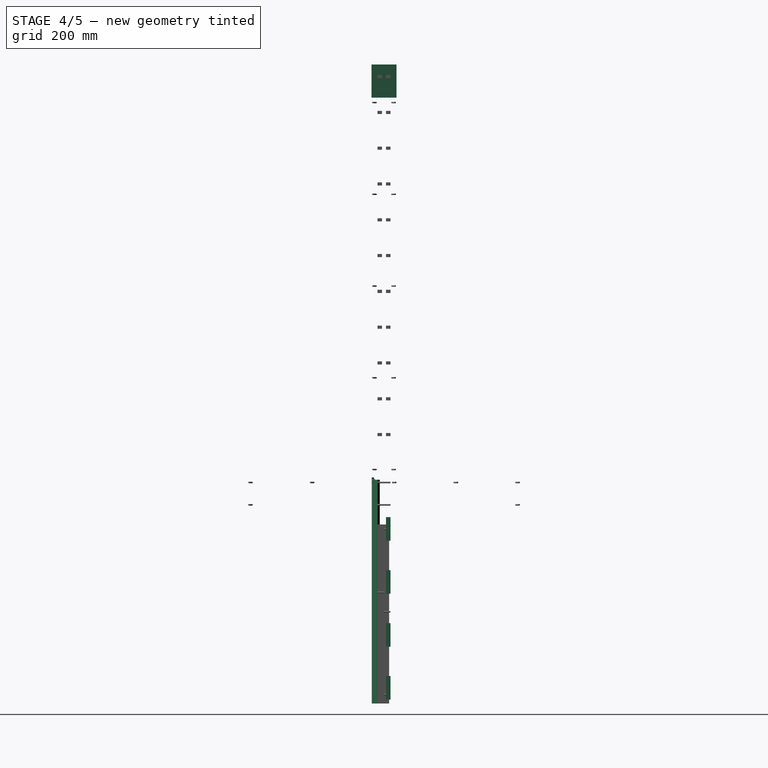
[diagram: stage 4 of 5 — right view after this stage's code; geometry added in this stage tinted green]
FEATURE [PartDesign::Body] Body001
  AllowCompound = false
  Origin = -> Origin001
FEATURE [PartDesign::CoordinateSystem] Local_CS  label="base_LCS"
  AttacherType = Attacher::AttachEngine3D
  AttachmentSupport = -> [XY_Plane]
  MapMode = 5
FEATURE [App::Link] Link001  label="top_placement"
  LinkTransform = true
  LinkedObject = -> <external composit_stand3_base_part1_main.FCStd>#Placment
FEATURE [App::Link] Link002  label="sink_placement"
  LinkTransform = true
  LinkedObject = -> <external composit_stand3_base_part1_main.FCStd>#Placment002
FEATURE [PartDesign::CoordinateSystem] Local_CS001  label="top_LCS"
  AttacherType = Attacher::AttachEngine3D
  AttachmentOffset = pos=(0,0,1428) rot=(0,0,1;0rad)
  AttachmentSupport = -> [XY_Plane]
  MapMode = 5
  Placement = pos=(0,0,1428) rot=(0,0,1;0rad)
  expr: AttachmentOffset = <<top_placement>>.LinkedObject.Placement
FEATURE [PartDesign::CoordinateSystem] Local_CS002  label="sink_LCS"
  AttacherType = Attacher::AttachEngine3D
  AttachmentOffset = pos=(8.37158,14.5,410) rot=(0,0,1;1.0472rad)
  AttachmentSupport = -> [XY_Plane]
  MapMode = 5
  Placement = pos=(8.37158,14.5,410) rot=(0,0,1;1.0472rad)
  expr: AttachmentOffset = <<sink_placement>>.LinkedObject.Placement
FEATURE [Part::Box] Box  label="Cube"
  AttacherType = Attacher::AttachEngine3D
  Height = 74
  Length = 8
  Placement = pos=(-3,-28,1354) rot=(0,0,1;0rad)
  Width = 56
  expr: .Placement.Base.z = <<top_placement>>.LinkedObject.Placement.Base.z * 1 mm - Height
  expr: Width = -.Placement.Base.y * 2
FEATURE [Part::Mirroring] Part__Mirroring001  label="Extrude (Mirror #2)"
  Base = (0,0,0)
  Normal = (0,1,0)
  Source = -> Fusion002
FEATURE [PartDesign::Body] Body  label="part1"
  AllowCompound = false
  Group = -> [Binder001,BaseBend,Boolean,Boolean001,Local_CS,Local_CS001,Local_CS002]
  Origin = -> Origin
  Tip = -> Boolean

RESOLVED EXTERNAL PARTS (link-assembly join: the EXTERNAL_REF files above that resolve inside this repo's crawl, each included once):
---- part ../module.FCStd = doc fcstd_3955753b3a20 ----
FCSTD DOCUMENT  (FreeCAD 1.1R38827 (Git))
Label: module
License: All rights reserved
LicenseURL: http://en.wikipedia.org/wiki/All_rights_reserved
objects: Sketcher::SketchObject×2, Part::Feature×1, PartDesign::FeatureBase×1, PartDesign::Body×1, Spreadsheet::Sheet×1
note: 8 computed .brp shape members not serialized (recipe doc carries the construction recipe); baked Part::Feature solids carry a one-line shape summary decoded from their .brp

FEATURE [Part::Feature] Part__Feature  label="module002"
  shape: bbox 170 x 148 x 41.12 mm, 715 faces (baked)
FEATURE [Sketcher::SketchObject] Sketch  label="module_holes"
  ArcFitTolerance = 0
  FullyConstrained = true
  MakeInternals = false
  sketch-geometry (10):
    g0: LineSegment StartX=59.5 StartY=-3.5 StartZ=0 EndX=59.5 EndY=3.5 EndZ=0
    g1: LineSegment StartX=59.5 StartY=3.5 StartZ=0 EndX=72.5 EndY=3.5 EndZ=0
    g2: LineSegment StartX=72.5 StartY=3.5 StartZ=0 EndX=72.5 EndY=-3.5 EndZ=0
    g3: LineSegment StartX=72.5 StartY=-3.5 StartZ=0 EndX=59.5 EndY=-3.5 EndZ=0
    g4: GeomPoint [constr] X=66 Y=0 Z=0
    g5: LineSegment StartX=-72.5 StartY=-3.5 StartZ=0 EndX=-72.5 EndY=3.5 EndZ=0
    g6: LineSegment StartX=-72.5 StartY=3.5 StartZ=0 EndX=-59.5 EndY=3.5 EndZ=0
    g7: LineSegment StartX=-59.5 StartY=3.5 StartZ=0 EndX=-59.5 EndY=-3.5 EndZ=0
    g8: LineSegment StartX=-59.5 StartY=-3.5 StartZ=0 EndX=-72.5 EndY=-3.5 EndZ=0
    g9: GeomPoint [constr] X=-66 Y=0 Z=0
  constraints (25):
    c: Coincident(g0,g1)
    c: Coincident(g1,g2)
    c: Coincident(g2,g3)
    c: Coincident(g3,g0)
    c: Horizontal(g1)
    c: Horizontal(g3)
    c: Vertical(g0)
    c: Vertical(g2)
    c: Symmetric(g1,g0,g4)
    c: PointOnObject(g4,g-1)
    c: Coincident(g5,g6)
    c: Coincident(g6,g7)
    c: Coincident(g7,g8)
    c: Coincident(g8,g5)
    c: Horizontal(g6)
    c: Horizontal(g8)
    c: Vertical(g5)
    c: Vertical(g7)
    c: Symmetric(g6,g5,g9)
    c: Symmetric(g9,g4,g-2)
    c: Equal(g1,g6)
    c: Equal(g7,g2)
    c: DistanceX(g1,g1) = 13
    c: DistanceY(g2,g2) = 7
    c: DistanceX(g9,g4) = 132
FEATURE [PartDesign::FeatureBase] BaseFeature
  BaseFeature = -> Part__Feature
  Placement = pos=(0,0,0) rot=(0,0,1;1.5708rad)
  Suppressed = false
FEATURE [PartDesign::Body] Body  label="module_Body"
  AllowCompound = false
  BaseFeature = -> Part__Feature
  Group = -> [BaseFeature]
  Origin = -> Origin
  Tip = -> BaseFeature
FEATURE [Spreadsheet::Sheet] Spreadsheet  label="Properties"
  cells = B2(module_width)==148 mm; C2(module_height)==160 mm; D2(module_fixture_distance_x)==132 mm; E2(module_fixture_distance_y)==80 mm; F2(module_hole_x)==13 mm; G2(module_hole_y)==7 mm
FEATURE [Sketcher::SketchObject] Sketch001  label="module_holes001"
  ArcFitTolerance = 0
  FullyConstrained = true
  MakeInternals = false
  sketch-geometry (10):
    g0: LineSegment StartX=59 StartY=-3.5 StartZ=0 EndX=59 EndY=3.5 EndZ=0
    g1: LineSegment StartX=59 StartY=3.5 StartZ=0 EndX=73 EndY=3.5 EndZ=0
    g2: LineSegment StartX=73 StartY=3.5 StartZ=0 EndX=73 EndY=-3.5 EndZ=0
    g3: LineSegment StartX=73 StartY=-3.5 StartZ=0 EndX=59 EndY=-3.5 EndZ=0
    g4: GeomPoint [constr] X=66 Y=0 Z=0
    g5: LineSegment StartX=-73 StartY=-3.5 StartZ=0 EndX=-73 EndY=3.5 EndZ=0
    g6: LineSegment StartX=-73 StartY=3.5 StartZ=0 EndX=-59 EndY=3.5 EndZ=0
    g7: LineSegment StartX=-59 StartY=3.5 StartZ=0 EndX=-59 EndY=-3.5 EndZ=0
    g8: LineSegment StartX=-59 StartY=-3.5 StartZ=0 EndX=-73 EndY=-3.5 EndZ=0
    g9: GeomPoint [constr] X=-66 Y=0 Z=0
  constraints (25):
    c: Coincident(g0,g1)
    c: Coincident(g1,g2)
    c: Coincident(g2,g3)
    c: Coincident(g3,g0)
    c: Horizontal(g1)
    c: Horizontal(g3)
    c: Vertical(g0)
    c: Vertical(g2)
    c: Symmetric(g1,g0,g4)
    c: PointOnObject(g4,g-1)
    c: Coincident(g5,g6)
    c: Coincident(g6,g7)
    c: Coincident(g7,g8)
    c: Coincident(g8,g5)
    c: Horizontal(g6)
    c: Horizontal(g8)
    c: Vertical(g5)
    c: Vertical(g7)
    c: Symmetric(g6,g5,g9)
    c: Symmetric(g9,g4,g-2)
    c: Equal(g1,g6)
    c: Equal(g7,g2)
    c: DistanceX(g1,g1) = 14
    c: DistanceY(g2,g2) = 7
    c: DistanceX(g9,g4) = 132
---- part composit_stand3_base_part1_main.FCStd = doc fcstd_83d21d27950e ----
FCSTD DOCUMENT  (FreeCAD 1.1R38827 (Git))
Label: composit_stand3_base_part1_main
License: All rights reserved
LicenseURL: http://en.wikipedia.org/wiki/All_rights_reserved
objects: Part::FeaturePython×32, Sketcher::SketchObject×7, App::Link×5, Part::Extrusion×3, PartDesign::SubShapeBinder×2, Part::MultiFuse×1, Part::Feature×1
note: 53 computed .brp shape members not serialized (recipe doc carries the construction recipe); baked Part::Feature solids carry a one-line shape summary decoded from their .brp
EXTERNAL_REF file=composit_stand3_main.FCStd obj=Sketch
EXTERNAL_REF file=composit_stand3_main.FCStd obj=LinearArray
EXTERNAL_REF file=../module.FCStd obj=Sketch
EXTERNAL_REF file=composit_stand3_sink_main.FCStd obj=Sketch001
EXTERNAL_REF file=composit_stand3_bottom_shield_main.FCStd obj=Placment
EXTERNAL_REF file=composit_stand3_bottom_shield_main.FCStd obj=LinearArray
EXTERNAL_REF file=composit_stand3_sink_main.FCStd obj=Sketch005

FEATURE [PartDesign::SubShapeBinder] Binder
  BindCopyOnChange = 0
  BindMode = 0
  ClaimChildren = true
  Fuse = false
  MakeFace = false
  OffsetFill = false
  OffsetIntersection = false
  OffsetJoinType = 0
  OffsetOpenResult = false
  PartialLoad = false
  Relative = false
  Support = -> [<external composit_stand3_main.FCStd>#Sketch]
  _Version = 2
FEATURE [Sketcher::SketchObject] Sketch
  ArcFitTolerance = 0
  ExternalGeometry = -> [Binder]
  FullyConstrained = true
  MakeInternals = false
  sketch-geometry (2):
    g0: LineSegment StartX=8.37158 StartY=14.5 StartZ=0 EndX=4.90748 EndY=14.5 EndZ=0
    g1: LineSegment StartX=4.90748 StartY=14.5 StartZ=0 EndX=-2.59252 EndY=27.4904 EndZ=0
  constraints (7):
    c: Horizontal(g0)
    c: Coincident(g0,g1)
    c: Angle(g1) = 2.0944
    c: Coincident(g0,g-3)
    c: Distance(g0,g1) = 3
    c: Distance(g1) = 15
    c: DistanceX(g0) = 4.90748  'x_offset'
FEATURE [Part::FeaturePython] LinearArray  # WARN: FeaturePython — macro-defined, semantics opaque (R4)
  Alignment = 0
  CellStart = A1
  Count = 11
  Dir = (0,0,-1)
  DirIsDriven = true
  DistributionLaw = 0
  DrivenProperty = 1
  EndInclusive = true
  ExposePlacement = false
  GeneratorMode = 1
  MarkerShape = 1
  MarkerSize = 0
  NumElements = 11
  OrientMode = 0
  Point = (0,0,0)
  PointIsDriven = true
  Reverse = false
  SpanEnd = 827
  SpanStart = 27
  Step = 80
  Type = lattice2LinearArray.LinearArray
  VSGVersion = 1
  Values = 27.0 | 107.0 | 187.0 | 267.0 | 347.0 | 427.0 | 507.0 | 587.0 | 667.0 | 747.0 | 827.0
  ValuesSource = 2
  isLattice = 1
  expr: SpanEnd = Step * (Count - 1) * 1 mm + SpanStart
FEATURE [App::Link] Link  label="modules_placement_x"
  LinkTransform = true
  LinkedObject = -> <external composit_stand3_main.FCStd>#LinearArray
FEATURE [Part::FeaturePython] Placment  label="top_placement"  # WARN: FeaturePython — macro-defined, semantics opaque (R4)
  AttacherType = Attacher::AttachEngine3D
  ExposePlacement = true
  MarkerShape = 1
  MarkerSize = 200
  NumElements = 1
  Placement = pos=(0,0,1428) rot=(0,0,1;0rad)
  Type = lattice2AttachablePlacement.AttachablePlacement
  isLattice = 1
FEATURE [Part::FeaturePython] Populate  label="Populate modules_placement_x with LinearArray"  # WARN: FeaturePython — macro-defined, semantics opaque (R4)
  Copying = 0
  ExposePlacement = false
  MarkerShape = 1
  MarkerSize = 0
  NumElements = 22
  Object = -> LinearArray
  OutputCompounding = 0
  PlacementsTo = -> Link
  Referencing = 0
  Type = lattice2PopulateCopies.LatticePopulateCopies
  isLattice = 1
FEATURE [Part::FeaturePython] Placment002  label="sink_placement"  # WARN: FeaturePython — macro-defined, semantics opaque (R4)
  AttacherType = Attacher::AttachEngine3D
  ExposePlacement = true
  MarkerShape = 1
  MarkerSize = 50
  NumElements = 1
  Placement = pos=(8.37158,14.5,410) rot=(0,0,1;1.0472rad)
  Type = lattice2AttachablePlacement.AttachablePlacement
  isLattice = 1
  expr: .Placement.Base.x = <<composit_stand3_main>>#<<main_sketch>>.Constraints.end_width / 2 / tan(60)
  expr: .Placement.Base.y = <<composit_stand3_main>>#<<main_sketch>>.Constraints.end_width / 2
FEATURE [App::Link] Link001  label="module_holes"
  LinkedObject = -> <external ../module.FCStd>#Sketch
FEATURE [Sketcher::SketchObject] Sketch001  label="basin_cut_top_sketch"
  ArcFitTolerance = 0
  FullyConstrained = true
  MakeInternals = false
  Placement = pos=(0,0,400) rot=(1,0,0;1.5708rad)
  expr: .Placement.Base.z = <<basin_cut_sketch>>.Constraints.height
  expr: Constraints[26] = <<basin_cut_sketch>>.Constraints.length
  expr: Constraints[28] = <<composit_stand3_main>>#<<main_sketch>>.Constraints.x_face_offset + 0.5 mm
  expr: Constraints[30] = <<composit_stand3_sink_main>>#<<side_bottom_edge>>.Constraints.angle
  sketch-geometry (14):
    g0: ArcOfEllipse CenterX=8.87158 CenterY=5 CenterZ=0 NormalX=0 NormalY=0 NormalZ=1 MajorRadius=40 MinorRadius=15 AngleXU=1.5708 StartAngle=4.71239 EndAngle=6.28319
    g1: LineSegment [constr] StartX=8.87158 StartY=45 StartZ=0 EndX=8.87158 EndY=-35 EndZ=0
    g2: LineSegment [constr] StartX=-6.12842 StartY=5 StartZ=0 EndX=23.8716 EndY=5 EndZ=0
    g3: GeomPoint [constr] X=8.87158 Y=42.081 Z=0
    g4: GeomPoint [constr] X=8.87158 Y=-32.081 Z=0
    g5: ArcOfCircle CenterX=28.8716 CenterY=5 CenterZ=0 NormalX=0 NormalY=0 NormalZ=1 AngleXU=0 Radius=5 StartAngle=3.14159 EndAngle=4.71239
    g6: LineSegment StartX=28.8716 StartY=0 StartZ=0 EndX=0 EndY=0 EndZ=0
    g7: LineSegment StartX=0 StartY=0 StartZ=0 EndX=0 EndY=45 EndZ=0
    g8: LineSegment StartX=0 StartY=45 StartZ=0 EndX=8.87158 EndY=45 EndZ=0
    g9: LineSegment StartX=238.446 StartY=3.98838 StartZ=0 EndX=238.446 EndY=0 EndZ=0
    g10: LineSegment StartX=238.446 StartY=0 StartZ=0 EndX=170.25 EndY=0 EndZ=0
    g11: LineSegment StartX=170.836 StartY=0.0172058 StartZ=0 EndX=238.446 EndY=3.98838 EndZ=0
    g12: ArcOfCircle CenterX=170.25 CenterY=10 CenterZ=0 NormalX=0 NormalY=0 NormalZ=1 AngleXU=0 Radius=10 StartAngle=4.71239 EndAngle=4.77106
    g13: LineSegment [constr] StartX=0 StartY=0 StartZ=0 EndX=238.446 EndY=14.0056 EndZ=0
  constraints (31):
    c: InternalAlignment(g1-g4 -> g0) x4
    c: Horizontal(g2)
    c: PointOnObject(g5,g-1)
    c: Tangent(g5,g0) = 1.5708
    c: Coincident(g6,g7)
    c: PointOnObject(g7,g-2)
    c: Vertical(g7)
    c: Coincident(g7,g8)
    c: Horizontal(g8)
    c: Tangent(g8,g0) = 1.5708
    c: Radius(g5) = 5
    c: Tangent(g5,g6) = 1.5708
    c: Horizontal(g6)
    c: DistanceY(g7) = 45  'sink_cut_height'
    c: Horizontal(g0,g0)
    c: DistanceX(g2,g2) = 30
    c: PointOnObject(g10,g-1)
    c: Coincident(g11,g9)
    c: PointOnObject(g9,g-1)
    c: Vertical(g9)
    c: Coincident(g9,g10)
    c: Tangent(g12,g10) = 1.5708
    c: Tangent(g12,g11) = -1.5708
    c: DistanceX(g9) = 238.446
    c: Radius(g12) = 10
    c: DistanceX(g0) = 8.87158
    c: Coincident(g13,g6)
    c: Angle(g13) = 0.0586697
    c: Vertical(g9,g13)
    c: Parallel(g11,g13)
    c: Distance(g9,g13) = 10
FEATURE [Part::FeaturePython] Placment003  label="bottom_fix_placement"  # WARN: FeaturePython — macro-defined, semantics opaque (R4)
  AttacherType = Attacher::AttachEngine3D
  AttachmentOffset = pos=(0,0,0) rot=(0,0,1;1.5708rad)
  ExposePlacement = true
  MarkerShape = 1
  MarkerSize = 50
  NumElements = 1
  Placement = pos=(294.4,0,0) rot=(0,0,1;1.5708rad)
  Type = lattice2AttachablePlacement.AttachablePlacement
  isLattice = 1
FEATURE [Sketcher::SketchObject] Sketch002  label="leg_amplifier"
  ArcFitTolerance = 0
  ExternalGeometry = -> [Binder]
  FullyConstrained = true
  MakeInternals = false
  Placement = pos=(238.046,0,0) rot=(0,0,1;0rad)
  expr: .Placement.Base.x = <<basin_cut_sketch>>.Constraints.length - 0.4 mm
  sketch-geometry (5):
    g0: LineSegment StartX=10 StartY=-14.5 StartZ=0 EndX=0 EndY=-14.5 EndZ=0
    g1: LineSegment StartX=0 StartY=-14.5 StartZ=0 EndX=0 EndY=11.5 EndZ=0
    g2: LineSegment StartX=0 StartY=11.5 StartZ=0 EndX=15 EndY=11.5 EndZ=0
    g3: LineSegment [constr] StartX=113.826 StartY=14.5 StartZ=0 EndX=113.826 EndY=0 EndZ=0
    g4: LineSegment [constr] StartX=113.826 StartY=0 StartZ=0 EndX=113.826 EndY=-14.5 EndZ=0
  constraints (16):
    c: Horizontal(g0)
    c: Coincident(g0,g1)
    c: Vertical(g1)
    c: Coincident(g1,g2)
    c: Horizontal(g2)
    c: DistanceY(g1,g-3) = 3
    c: Coincident(g-3,g3)
    c: PointOnObject(g3,g-1)
    c: Vertical(g3)
    c: Coincident(g3,g4)
    c: Vertical(g4)
    c: Equal(g4,g3)
    c: Horizontal(g4,g0)
    c: DistanceX(g2,g2) = 15
    c: DistanceX(g0,g0) = 10
    c: PointOnObject(g-1,g1)
FEATURE [Part::FeaturePython] LinearArray001  # WARN: FeaturePython — macro-defined, semantics opaque (R4)
  Alignment = 0
  CellStart = A1
  Count = 5
  Dir = (1,0,0)
  DirIsDriven = true
  DistributionLaw = 0
  DrivenProperty = 1
  EndInclusive = true
  ExposePlacement = false
  GeneratorMode = 0
  MarkerShape = 1
  MarkerSize = 0
  NumElements = 5
  OrientMode = 1
  Point = (0,0,0)
  PointIsDriven = true
  Reverse = false
  SpanEnd = 50
  SpanStart = 0
  Step = 12.5
  Type = lattice2LinearArray.LinearArray
  VSGVersion = 1
  Values = 0.0 | 12.5 | 25.0 | 37.5 | 50.0
  ValuesSource = 2
  isLattice = 1
FEATURE [Part::FeaturePython] Placment004  # WARN: FeaturePython — macro-defined, semantics opaque (R4)
  AttacherType = Attacher::AttachEngine3D
  AttachmentOffset = pos=(-3,261,7) rot=(-0.57735,-0.57735,0.57735;2.0944rad)
  AttachmentSupport = -> [Sketch]
  ExposePlacement = true
  MapMode = 7
  MarkerShape = 1
  MarkerSize = 5
  NumElements = 1
  Placement = pos=(-1.6906,19.9282,261) rot=(0.250563,-0.935113,0.250563;1.63783rad)
  Type = lattice2AttachablePlacement.AttachablePlacement
  isLattice = 1
FEATURE [Part::FeaturePython] Populate004  label="Populate Placment004 with LinearArray001"  # WARN: FeaturePython — macro-defined, semantics opaque (R4)
  Copying = 0
  ExposePlacement = false
  MarkerShape = 1
  MarkerSize = 0
  NumElements = 5
  Object = -> LinearArray001
  OutputCompounding = 0
  PlacementsTo = -> Placment004
  Referencing = 0
  Type = lattice2PopulateCopies.LatticePopulateCopies
  isLattice = 1
FEATURE [Sketcher::SketchObject] Sketch003  label="basin_cut_sketch"
  ArcFitTolerance = 0
  FullyConstrained = true
  MakeInternals = false
  Placement = pos=(0,0,0) rot=(1,0,0;1.5708rad)
  expr: .Constraints.length = 206.5 / sin(60)
  sketch-geometry (4):
    g0: LineSegment StartX=0 StartY=0 StartZ=0 EndX=238.446 EndY=0 EndZ=0
    g1: LineSegment StartX=238.446 StartY=0 StartZ=0 EndX=238.446 EndY=400 EndZ=0
    g2: LineSegment StartX=238.446 StartY=400 StartZ=0 EndX=0 EndY=400 EndZ=0
    g3: LineSegment StartX=0 StartY=400 StartZ=0 EndX=0 EndY=0 EndZ=0
  constraints (11):
    c: Coincident(g0,g1)
    c: Coincident(g1,g2)
    c: Coincident(g2,g3)
    c: Coincident(g3,g0)
    c: Horizontal(g0)
    c: Horizontal(g2)
    c: Vertical(g1)
    c: Vertical(g3)
    c: Coincident(g0,g-1)
    c: DistanceY(g3,g3) = 400  'height'
    c: DistanceX(g0,g0) = 238.446  'length'
FEATURE [Part::Extrusion] Extrude001
  Base = -> Sketch003
  Dir = (0,-1,2e-16)
  DirMode = 2
  FaceMakerClass = Part::FaceMakerBullseye
  FaceMakerMode = 3
  LengthFwd = 29
  LengthRev = 0
  Solid = true
  Symmetric = true
  expr: LengthFwd = <<composit_stand3_main>>#<<main_sketch>>.Constraints.end_width
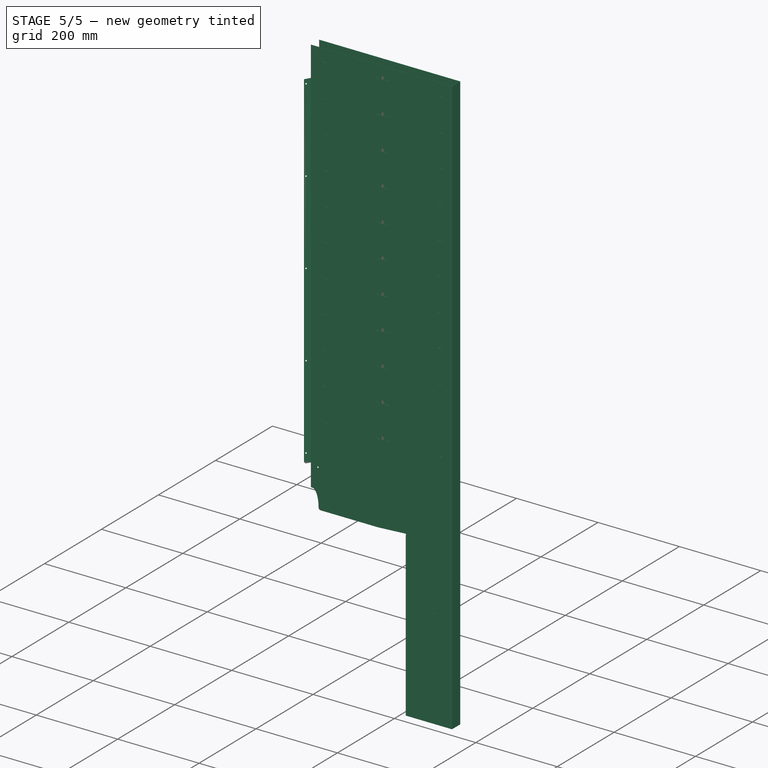
[diagram: stage 5 of 5 — iso view after this stage's code; geometry added in this stage tinted green]
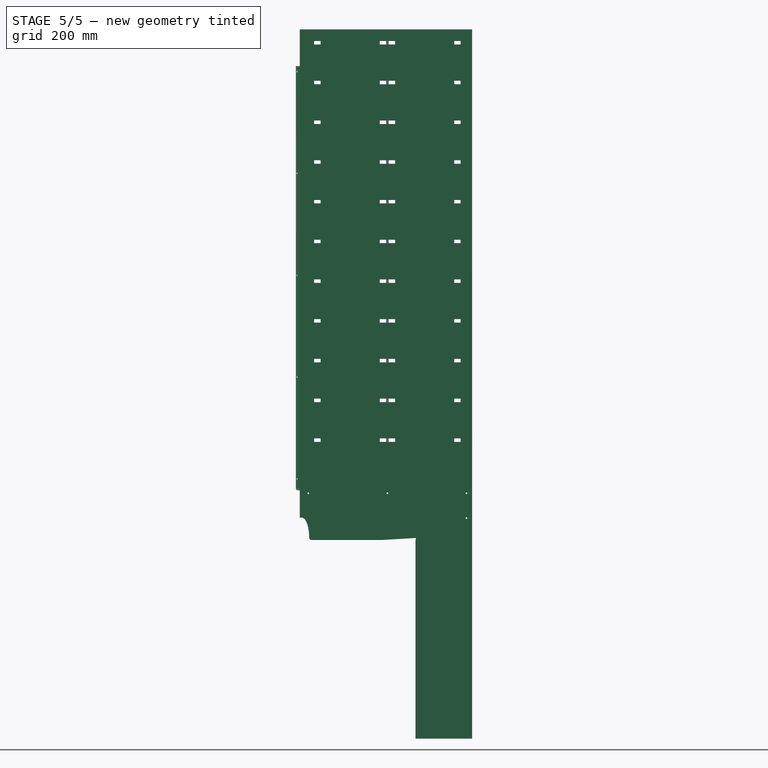
[diagram: stage 5 of 5 — front view after this stage's code; geometry added in this stage tinted green]
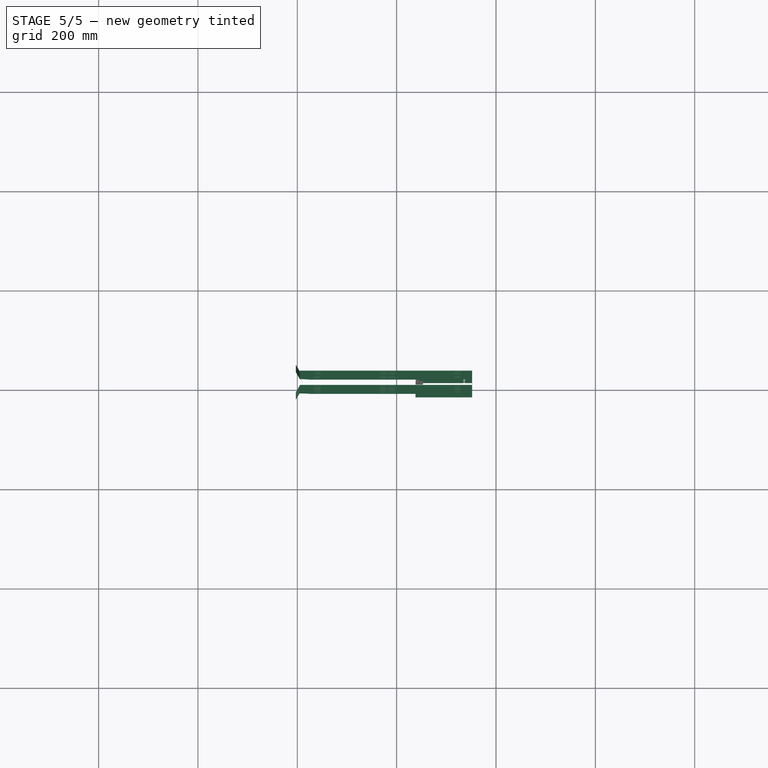
[diagram: stage 5 of 5 — top view after this stage's code; geometry added in this stage tinted green]
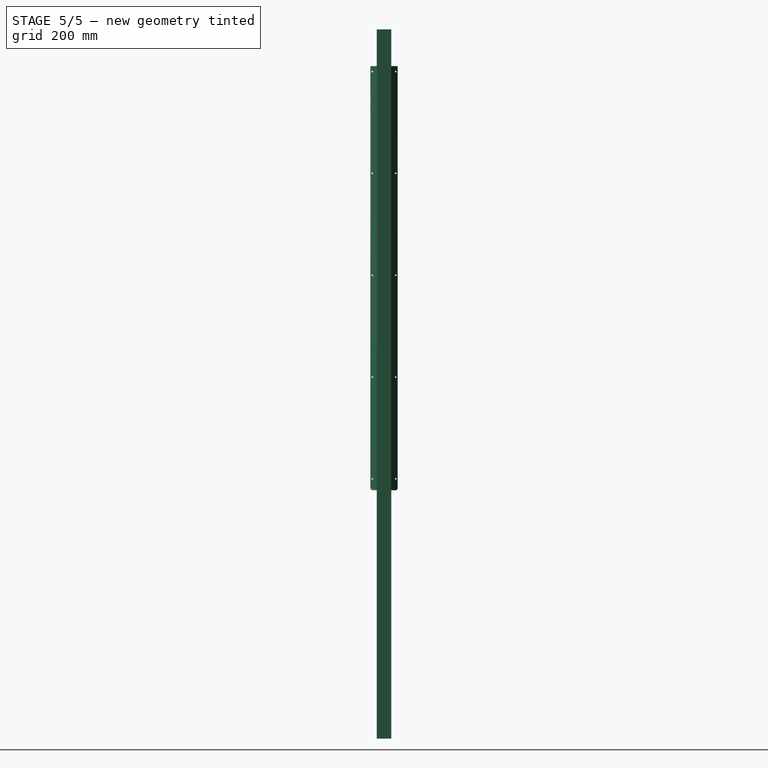
[diagram: stage 5 of 5 — right view after this stage's code; geometry added in this stage tinted green]
FEATURE [PartDesign::Body] Body002  label="leg"
  AllowCompound = false
  Group = -> [Binder003,BaseBend001,Boolean002]
  Origin = -> Origin002
  Tip = -> Boolean002
FEATURE [Part::Compound] Compound
  Links = -> [Body002]
FEATURE [App::Link] Link009  label="sink_holes"
  LinkedObject = -> <external composit_stand3_base_part1_main.FCStd>#Join003
FEATURE [Part::FeaturePython] Populate005  label="Populate Populate PolarArray with sink_placement with sink_holes"  # WARN: FeaturePython — macro-defined, semantics opaque (R4)
  Copying = 0
  ExposePlacement = false
  MarkerShape = 1
  MarkerSize = 0
  NumElements = 16
  Object = -> Link009
  OutputCompounding = 0
  PlacementsTo = -> Populate004
  Referencing = 0
  Type = lattice2PopulateCopies.LatticePopulateCopies
  isLattice = 1
FEATURE [Part::FeaturePython] Join  label="hole_3.4mm_placements"  # WARN: FeaturePython — macro-defined, semantics opaque (R4)
  ExposePlacement = false
  Interleave = false
  Links = -> [Link,Link007,Link008,Mirror,Populate005]
  MarkerShape = 1
  MarkerSize = 10
  NumElements = 30
  Type = lattice2JoinArrays.JoinArrays
  isLattice = 1
FEATURE [Part::FeaturePython] Populate002  label="Populate hole_3.4mm_placements with hole_3.4mm_rev"  # WARN: FeaturePython — macro-defined, semantics opaque (R4)
  Copying = 0
  ExposePlacement = false
  MarkerShape = 1
  MarkerSize = 0
  NumElements = 0
  Object = -> Link006
  OutputCompounding = 1
  PlacementsTo = -> Join
  Referencing = 0
  Type = lattice2PopulateCopies.LatticePopulateCopies
  isLattice = 0
FEATURE [Part::MultiFuse] Fusion
  Shapes = -> [Link003,Box,Part__Mirroring001,Populate,Populate001,Populate002,Fusion002]
FEATURE [PartDesign::Boolean] Boolean
  BaseFeature = -> BaseBend
  Group = -> [Fusion]
  Refine = true
  Suppressed = false
  Type = 1
  UsePlacement = true
FEATURE [PartDesign::Boolean] Boolean001
  BaseFeature = -> Boolean
  Group = -> [Compound]
  Refine = true
  Suppressed = false
  Type = 0
  UsePlacement = true
FEATURE [Part::MultiFuse] Fusion  label="basin_cut"
  Refine = true
  Shapes = -> [Extrude001,Extrude002]
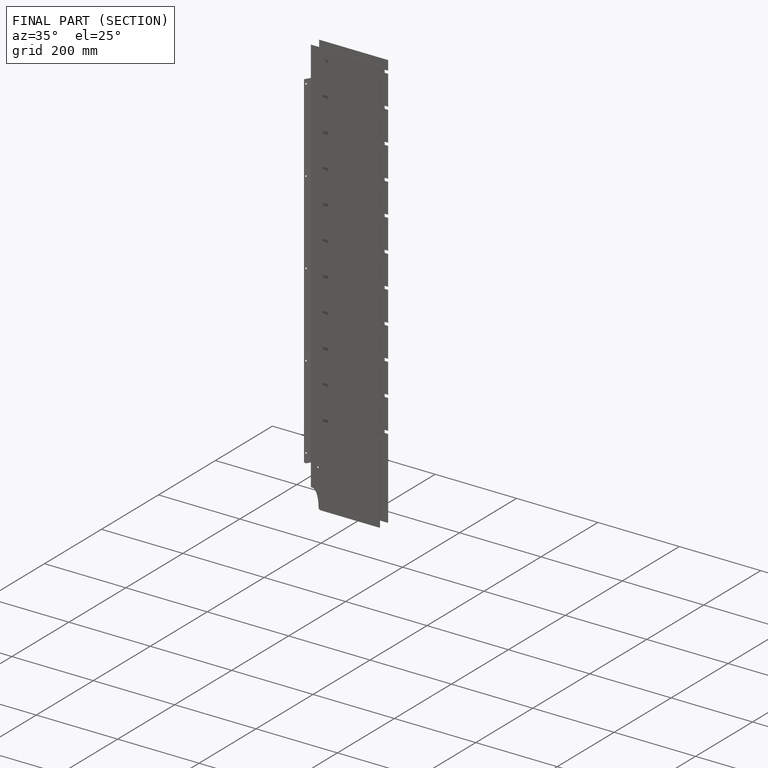
[diagram: finished part — half-section view (interior)]
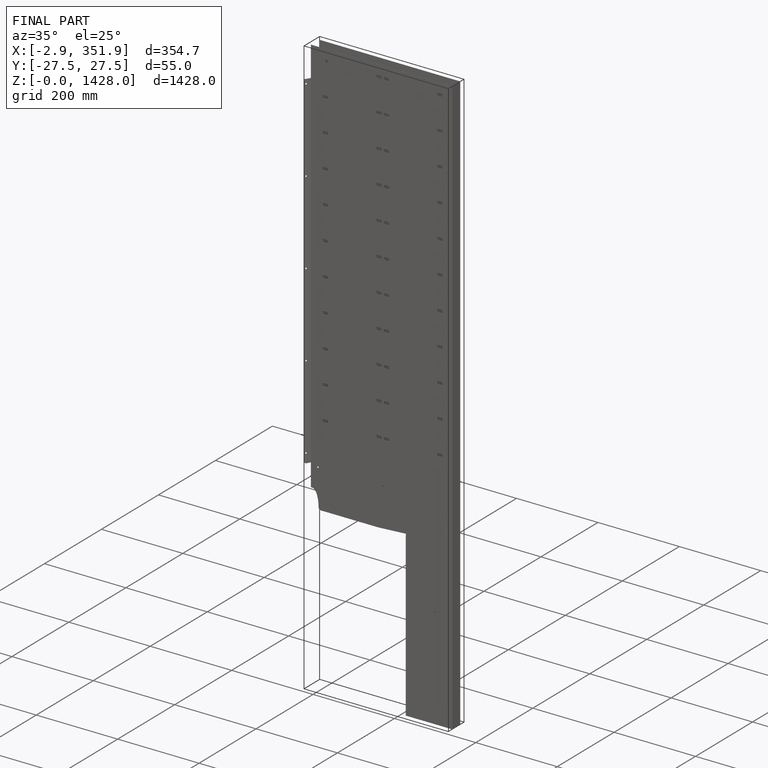
[diagram: finished part — iso view with bounding-box wireframe]
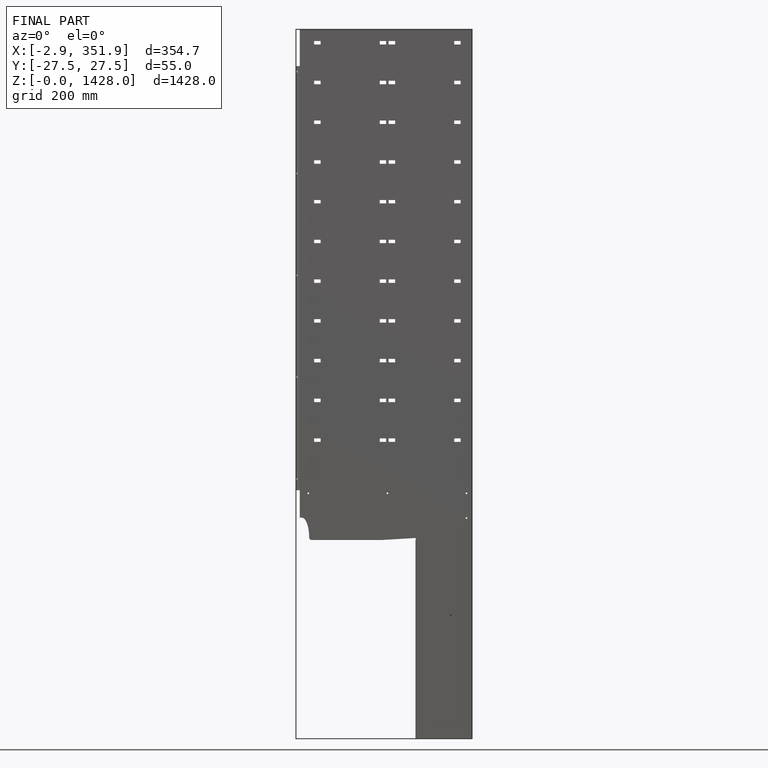
[diagram: finished part — front view with bounding-box wireframe]
